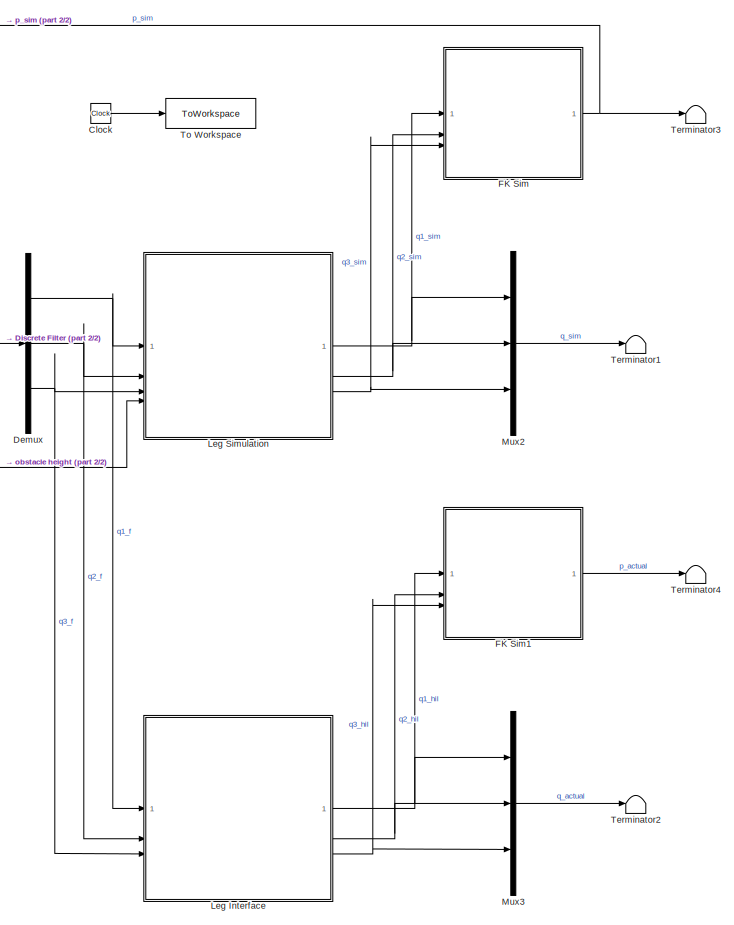
[diagram: root canvas - part 1/2, right side, full height]
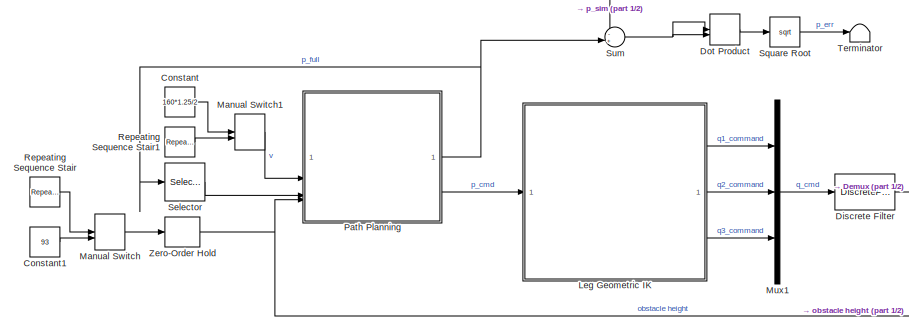
[diagram: root canvas - part 2/2, middle left region]
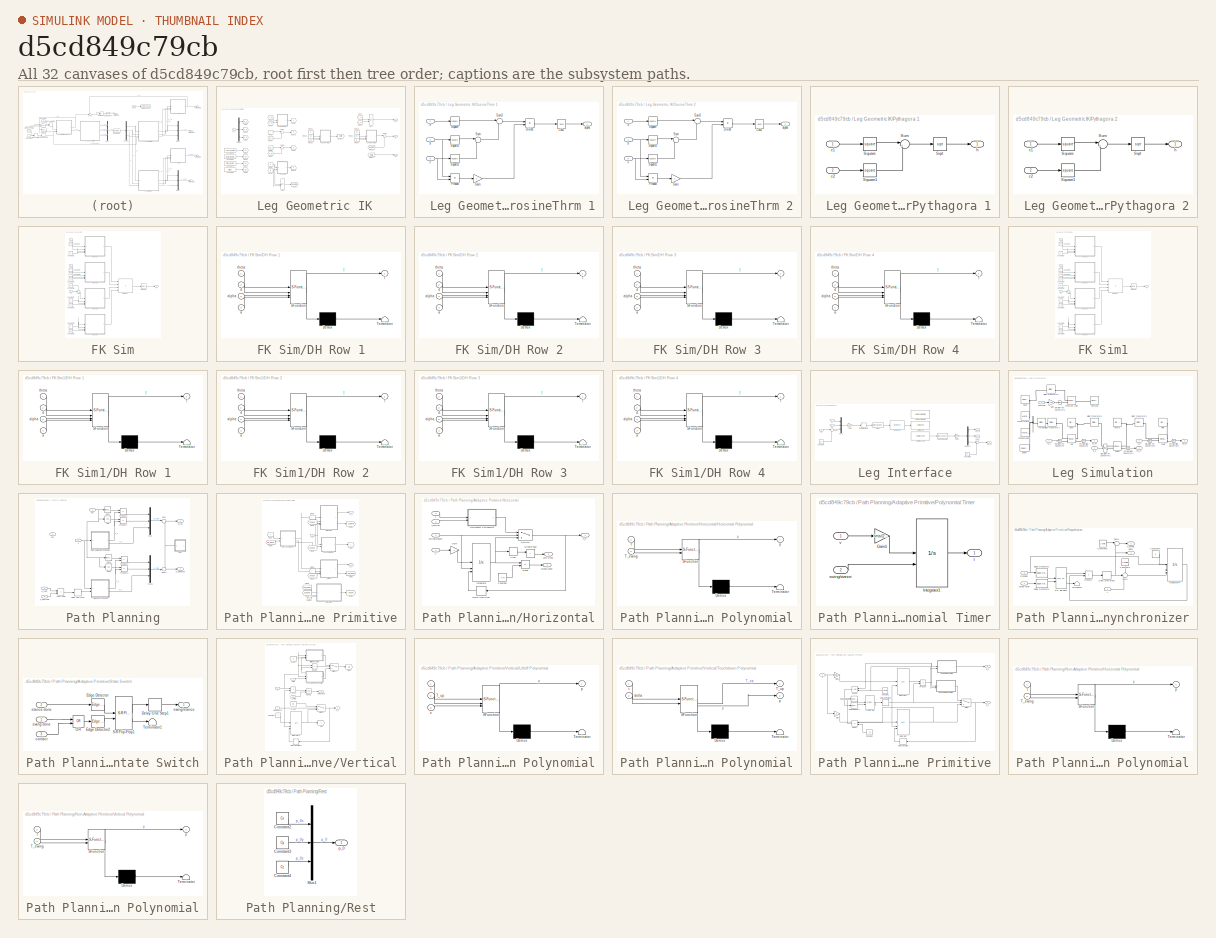
[diagram: thumbnail index - all 32 canvases of the model, root first then tree order]
MODEL slx_d5cd849c79cb
KIND model
CONFIG AbsTol = auto
CONFIG EnableMultiTasking = off
CONFIG FixedStep = auto
CONFIG MaxStep = auto
CONFIG MinStep = auto
CONFIG RelTol = 1e-3
CONFIG SampleTimeConstraint = Unconstrained
CONFIG SolverName = ode23t
CONFIG StartTime = 0.0
CONFIG StopTime = 10
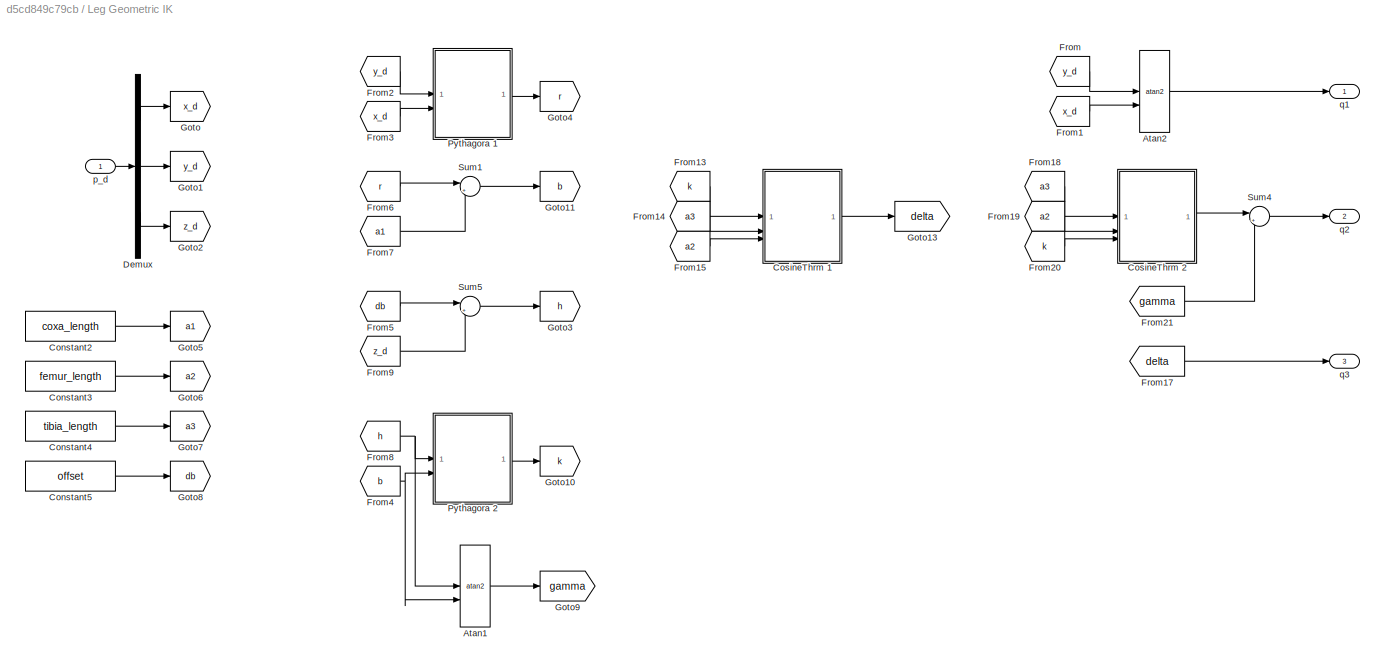
BLOCK [SubSystem]  Leg Geometric IK
BLOCK [Trigonometry]  Leg Geometric IK/Atan1
  Operator = atan2
BLOCK [Trigonometry]  Leg Geometric IK/Atan2
  Operator = atan2
BLOCK [Constant]  Leg Geometric IK/Constant2
  Value = coxa_length
BLOCK [Constant]  Leg Geometric IK/Constant3
  Value = femur_length
BLOCK [Constant]  Leg Geometric IK/Constant4
  Value = tibia_length
BLOCK [Constant]  Leg Geometric IK/Constant5
  Value = offset
BLOCK [SubSystem]  Leg Geometric IK/CosineThrm 1
BLOCK [Trigonometry]  Leg Geometric IK/CosineThrm 1/Cos1
  Operator = acos
BLOCK [Product]  Leg Geometric IK/CosineThrm 1/Divide
  Inputs = */
BLOCK [Gain]  Leg Geometric IK/CosineThrm 1/Gain
  Gain = 2
BLOCK [Product]  Leg Geometric IK/CosineThrm 1/Product
BLOCK [Math]  Leg Geometric IK/CosineThrm 1/Square
  Operator = square
BLOCK [Math]  Leg Geometric IK/CosineThrm 1/Square1
  Operator = square
BLOCK [Math]  Leg Geometric IK/CosineThrm 1/Square2
  Operator = square
BLOCK [Sum]  Leg Geometric IK/CosineThrm 1/Sum
  Inputs = |++
BLOCK [Sum]  Leg Geometric IK/CosineThrm 1/Sum3
  Inputs = |-+
BLOCK [Inport]  Leg Geometric IK/CosineThrm 1/a
  NameLocation = left
BLOCK [Outport]  Leg Geometric IK/CosineThrm 1/alpha
  NameLocation = right
BLOCK [Inport]  Leg Geometric IK/CosineThrm 1/b
  NameLocation = left
  Port = 2
BLOCK [Inport]  Leg Geometric IK/CosineThrm 1/c
  NameLocation = left
  Port = 3
BLOCK [SubSystem]  Leg Geometric IK/CosineThrm 2
BLOCK [Trigonometry]  Leg Geometric IK/CosineThrm 2/Cos1
  Operator = acos
BLOCK [Product]  Leg Geometric IK/CosineThrm 2/Divide
  Inputs = */
BLOCK [Gain]  Leg Geometric IK/CosineThrm 2/Gain
  Gain = 2
BLOCK [Product]  Leg Geometric IK/CosineThrm 2/Product
BLOCK [Math]  Leg Geometric IK/CosineThrm 2/Square
  Operator = square
BLOCK [Math]  Leg Geometric IK/CosineThrm 2/Square1
  Operator = square
BLOCK [Math]  Leg Geometric IK/CosineThrm 2/Square2
  Operator = square
BLOCK [Sum]  Leg Geometric IK/CosineThrm 2/Sum
  Inputs = |++
BLOCK [Sum]  Leg Geometric IK/CosineThrm 2/Sum3
  Inputs = |-+
BLOCK [Inport]  Leg Geometric IK/CosineThrm 2/a
  NameLocation = left
BLOCK [Outport]  Leg Geometric IK/CosineThrm 2/alpha
  NameLocation = right
BLOCK [Inport]  Leg Geometric IK/CosineThrm 2/b
  NameLocation = left
  Port = 2
BLOCK [Inport]  Leg Geometric IK/CosineThrm 2/c
  NameLocation = left
  Port = 3
BLOCK [Demux]  Leg Geometric IK/Demux
  Outputs = 3
BLOCK [From]  Leg Geometric IK/From
  GotoTag = y_d
BLOCK [From]  Leg Geometric IK/From1
  GotoTag = x_d
BLOCK [From]  Leg Geometric IK/From13
  GotoTag = k
BLOCK [From]  Leg Geometric IK/From14
  GotoTag = a3
BLOCK [From]  Leg Geometric IK/From15
  GotoTag = a2
BLOCK [From]  Leg Geometric IK/From17
  GotoTag = delta
BLOCK [From]  Leg Geometric IK/From18
  GotoTag = a3
BLOCK [From]  Leg Geometric IK/From19
  GotoTag = a2
BLOCK [From]  Leg Geometric IK/From2
  GotoTag = y_d
BLOCK [From]  Leg Geometric IK/From20
  GotoTag = k
BLOCK [From]  Leg Geometric IK/From21
  GotoTag = gamma
BLOCK [From]  Leg Geometric IK/From3
  GotoTag = x_d
BLOCK [From]  Leg Geometric IK/From4
  GotoTag = b
BLOCK [From]  Leg Geometric IK/From5
  GotoTag = db
BLOCK [From]  Leg Geometric IK/From6
  GotoTag = r
BLOCK [From]  Leg Geometric IK/From7
  GotoTag = a1
BLOCK [From]  Leg Geometric IK/From8
  GotoTag = h
BLOCK [From]  Leg Geometric IK/From9
  GotoTag = z_d
BLOCK [Goto]  Leg Geometric IK/Goto
  GotoTag = x_d
BLOCK [Goto]  Leg Geometric IK/Goto1
  GotoTag = y_d
BLOCK [Goto]  Leg Geometric IK/Goto10
  GotoTag = k
BLOCK [Goto]  Leg Geometric IK/Goto11
  GotoTag = b
BLOCK [Goto]  Leg Geometric IK/Goto13
  GotoTag = delta
BLOCK [Goto]  Leg Geometric IK/Goto2
  GotoTag = z_d
BLOCK [Goto]  Leg Geometric IK/Goto3
  GotoTag = h
BLOCK [Goto]  Leg Geometric IK/Goto4
  GotoTag = r
BLOCK [Goto]  Leg Geometric IK/Goto5
  GotoTag = a1
BLOCK [Goto]  Leg Geometric IK/Goto6
  GotoTag = a2
BLOCK [Goto]  Leg Geometric IK/Goto7
  GotoTag = a3
BLOCK [Goto]  Leg Geometric IK/Goto8
  GotoTag = db
BLOCK [Goto]  Leg Geometric IK/Goto9
  GotoTag = gamma
BLOCK [SubSystem]  Leg Geometric IK/Pythagora 1
BLOCK [Sqrt]  Leg Geometric IK/Pythagora 1/Sqrt
BLOCK [Math]  Leg Geometric IK/Pythagora 1/Square
  Operator = square
BLOCK [Math]  Leg Geometric IK/Pythagora 1/Square1
  Operator = square
BLOCK [Sum]  Leg Geometric IK/Pythagora 1/Sum
  Inputs = |++
BLOCK [Inport]  Leg Geometric IK/Pythagora 1/c1
  NameLocation = left
BLOCK [Inport]  Leg Geometric IK/Pythagora 1/c2
  NameLocation = left
  Port = 2
BLOCK [Outport]  Leg Geometric IK/Pythagora 1/h
  NameLocation = right
BLOCK [SubSystem]  Leg Geometric IK/Pythagora 2
BLOCK [Sqrt]  Leg Geometric IK/Pythagora 2/Sqrt
BLOCK [Math]  Leg Geometric IK/Pythagora 2/Square
  Operator = square
BLOCK [Math]  Leg Geometric IK/Pythagora 2/Square1
  Operator = square
BLOCK [Sum]  Leg Geometric IK/Pythagora 2/Sum
  Inputs = |++
BLOCK [Inport]  Leg Geometric IK/Pythagora 2/c1
  NameLocation = left
BLOCK [Inport]  Leg Geometric IK/Pythagora 2/c2
  NameLocation = left
  Port = 2
BLOCK [Outport]  Leg Geometric IK/Pythagora 2/h
  NameLocation = right
BLOCK [Sum]  Leg Geometric IK/Sum1
  Inputs = |+-
BLOCK [Sum]  Leg Geometric IK/Sum4
  Inputs = |+-
BLOCK [Sum]  Leg Geometric IK/Sum5
  Inputs = |+-
BLOCK [Inport]  Leg Geometric IK/p_d
  NameLocation = left
BLOCK [Outport]  Leg Geometric IK/q1
  NameLocation = right
BLOCK [Outport]  Leg Geometric IK/q2
  NameLocation = right
  Port = 2
BLOCK [Outport]  Leg Geometric IK/q3
  NameLocation = right
  Port = 3
BLOCK [Clock] Clock
  Decimation = 1
BLOCK [Constant] Constant
  Value = 160*1.25/2
BLOCK [Constant] Constant1
  Value = 93
BLOCK [Demux] Demux
  Outputs = 3
BLOCK [DiscreteFilter] Discrete Filter
  Commented = through
  Denominator = [1 -(1-alpha)]
  InputPortMap = u0
  Numerator = [alpha]
  SampleTime = Ts
BLOCK [DotProduct] Dot Product
  OutDataTypeStr = Inherit: Inherit via internal rule
BLOCK [SubSystem] FK Sim
BLOCK [Constant] FK Sim/Constant
  Value = 178
BLOCK [Constant] FK Sim/Constant1
  Value = 0
BLOCK [Constant] FK Sim/Constant2
  Value = 40
BLOCK [Constant] FK Sim/Constant3
  Value = pi/2
BLOCK [Constant] FK Sim/Constant4
  Value = 0
BLOCK [Constant] FK Sim/Constant5
  Value = 78
BLOCK [Constant] FK Sim/Constant6
  Value = 132
BLOCK [Constant] FK Sim/Constant7
  Value = 0
BLOCK [Constant] FK Sim/Constant8
  Value = 0
BLOCK [Constant] FK Sim/Constant9
  Value = pi
BLOCK [SubSystem] FK Sim/DH Row 1
  ErrorFcn = Stateflow.Translate.translate
  PermitHierarchicalResolution = ExplicitOnly
  SFBlockType = MATLAB Function
  TreatAsAtomicUnit = on
BLOCK [Demux] FK Sim/DH Row 1/ Demux 
  Outputs = 1
BLOCK [S-Function] FK Sim/DH Row 1/ SFunction 
  EnableBusSupport = on
  FunctionName = sf_sfun
  PortCounts = [4 2]
  SFcnIsStateOwnerBlock = off
  SFunctionDeploymentMode = off
  Tag = Stateflow S-Function 2
BLOCK [Terminator] FK Sim/DH Row 1/ Terminator 
BLOCK [Outport] FK Sim/DH Row 1/T
BLOCK [Inport] FK Sim/DH Row 1/a
  Port = 4
BLOCK [Inport] FK Sim/DH Row 1/alpha
  Port = 3
BLOCK [Inport] FK Sim/DH Row 1/d
  Port = 2
BLOCK [Inport] FK Sim/DH Row 1/theta
BLOCK [SubSystem] FK Sim/DH Row 2
  ErrorFcn = Stateflow.Translate.translate
  PermitHierarchicalResolution = ExplicitOnly
  SFBlockType = MATLAB Function
  TreatAsAtomicUnit = on
BLOCK [Demux] FK Sim/DH Row 2/ Demux 
  Outputs = 1
BLOCK [S-Function] FK Sim/DH Row 2/ SFunction 
  EnableBusSupport = on
  FunctionName = sf_sfun
  PortCounts = [4 2]
  SFcnIsStateOwnerBlock = off
  SFunctionDeploymentMode = off
  Tag = Stateflow S-Function 1
BLOCK [Terminator] FK Sim/DH Row 2/ Terminator 
BLOCK [Outport] FK Sim/DH Row 2/T
BLOCK [Inport] FK Sim/DH Row 2/a
  Port = 4
BLOCK [Inport] FK Sim/DH Row 2/alpha
  Port = 3
BLOCK [Inport] FK Sim/DH Row 2/d
  Port = 2
BLOCK [Inport] FK Sim/DH Row 2/theta
BLOCK [SubSystem] FK Sim/DH Row 3
  ErrorFcn = Stateflow.Translate.translate
  PermitHierarchicalResolution = ExplicitOnly
  SFBlockType = MATLAB Function
  TreatAsAtomicUnit = on
BLOCK [Demux] FK Sim/DH Row 3/ Demux 
  Outputs = 1
BLOCK [S-Function] FK Sim/DH Row 3/ SFunction 
  EnableBusSupport = on
  FunctionName = sf_sfun
  PortCounts = [4 2]
  SFcnIsStateOwnerBlock = off
  SFunctionDeploymentMode = off
  Tag = Stateflow S-Function 3
BLOCK [Terminator] FK Sim/DH Row 3/ Terminator 
BLOCK [Outport] FK Sim/DH Row 3/T
BLOCK [Inport] FK Sim/DH Row 3/a
  Port = 4
BLOCK [Inport] FK Sim/DH Row 3/alpha
  Port = 3
BLOCK [Inport] FK Sim/DH Row 3/d
  Port = 2
BLOCK [Inport] FK Sim/DH Row 3/theta
BLOCK [SubSystem] FK Sim/DH Row 4
  ErrorFcn = Stateflow.Translate.translate
  PermitHierarchicalResolution = ExplicitOnly
  SFBlockType = MATLAB Function
  TreatAsAtomicUnit = on
BLOCK [Demux] FK Sim/DH Row 4/ Demux 
  Outputs = 1
BLOCK [S-Function] FK Sim/DH Row 4/ SFunction 
  EnableBusSupport = on
  FunctionName = sf_sfun
  PortCounts = [4 2]
  SFcnIsStateOwnerBlock = off
  SFunctionDeploymentMode = off
  Tag = Stateflow S-Function 4
BLOCK [Terminator] FK Sim/DH Row 4/ Terminator 
BLOCK [Outport] FK Sim/DH Row 4/T
BLOCK [Inport] FK Sim/DH Row 4/a
  Port = 4
BLOCK [Inport] FK Sim/DH Row 4/alpha
  Port = 3
BLOCK [Inport] FK Sim/DH Row 4/d
  Port = 2
BLOCK [Inport] FK Sim/DH Row 4/theta
BLOCK [Product] FK Sim/Product
  Inputs = 4
  Multiplication = Matrix(*)
BLOCK [Selector] FK Sim/Selector
  IndexOptions = Index vector (dialog),Index vector (dialog)
  Indices = [1 2 3],4
  InputPortWidth = 3
  NumberOfDimensions = 2
  OutputSizes = 1,1
BLOCK [Sum] FK Sim/Sum
  Inputs = -+|
BLOCK [Outport] FK Sim/p
  NameLocation = right
BLOCK [Inport] FK Sim/q1
  NameLocation = left
BLOCK [Inport] FK Sim/q2
  NameLocation = left
  Port = 2
BLOCK [Inport] FK Sim/q3
  NameLocation = left
  Port = 3
BLOCK [SubSystem] FK Sim1
  Commented = on
BLOCK [Constant] FK Sim1/Constant
  Value = 178
BLOCK [Constant] FK Sim1/Constant1
  Value = 0
BLOCK [Constant] FK Sim1/Constant2
  Value = 40
BLOCK [Constant] FK Sim1/Constant3
  Value = pi/2
BLOCK [Constant] FK Sim1/Constant4
  Value = 0
BLOCK [Constant] FK Sim1/Constant5
  Value = 78
BLOCK [Constant] FK Sim1/Constant6
  Value = 132
BLOCK [Constant] FK Sim1/Constant7
  Value = 0
BLOCK [Constant] FK Sim1/Constant8
  Value = 0
BLOCK [Constant] FK Sim1/Constant9
  Value = pi
BLOCK [SubSystem] FK Sim1/DH Row 1
  ErrorFcn = Stateflow.Translate.translate
  PermitHierarchicalResolution = ExplicitOnly
  SFBlockType = MATLAB Function
  TreatAsAtomicUnit = on
BLOCK [Demux] FK Sim1/DH Row 1/ Demux 
  Outputs = 1
BLOCK [S-Function] FK Sim1/DH Row 1/ SFunction 
  EnableBusSupport = on
  FunctionName = sf_sfun
  PortCounts = [4 2]
  SFcnIsStateOwnerBlock = off
  SFunctionDeploymentMode = off
  Tag = Stateflow S-Function 5
BLOCK [Terminator] FK Sim1/DH Row 1/ Terminator 
BLOCK [Outport] FK Sim1/DH Row 1/T
BLOCK [Inport] FK Sim1/DH Row 1/a
  Port = 4
BLOCK [Inport] FK Sim1/DH Row 1/alpha
  Port = 3
BLOCK [Inport] FK Sim1/DH Row 1/d
  Port = 2
BLOCK [Inport] FK Sim1/DH Row 1/theta
BLOCK [SubSystem] FK Sim1/DH Row 2
  ErrorFcn = Stateflow.Translate.translate
  PermitHierarchicalResolution = ExplicitOnly
  SFBlockType = MATLAB Function
  TreatAsAtomicUnit = on
BLOCK [Demux] FK Sim1/DH Row 2/ Demux 
  Outputs = 1
BLOCK [S-Function] FK Sim1/DH Row 2/ SFunction 
  EnableBusSupport = on
  FunctionName = sf_sfun
  PortCounts = [4 2]
  SFcnIsStateOwnerBlock = off
  SFunctionDeploymentMode = off
  Tag = Stateflow S-Function 6
BLOCK [Terminator] FK Sim1/DH Row 2/ Terminator 
BLOCK [Outport] FK Sim1/DH Row 2/T
BLOCK [Inport] FK Sim1/DH Row 2/a
  Port = 4
BLOCK [Inport] FK Sim1/DH Row 2/alpha
  Port = 3
BLOCK [Inport] FK Sim1/DH Row 2/d
  Port = 2
BLOCK [Inport] FK Sim1/DH Row 2/theta
BLOCK [SubSystem] FK Sim1/DH Row 3
  ErrorFcn = Stateflow.Translate.translate
  PermitHierarchicalResolution = ExplicitOnly
  SFBlockType = MATLAB Function
  TreatAsAtomicUnit = on
BLOCK [Demux] FK Sim1/DH Row 3/ Demux 
  Outputs = 1
BLOCK [S-Function] FK Sim1/DH Row 3/ SFunction 
  EnableBusSupport = on
  FunctionName = sf_sfun
  PortCounts = [4 2]
  SFcnIsStateOwnerBlock = off
  SFunctionDeploymentMode = off
  Tag = Stateflow S-Function 7
BLOCK [Terminator] FK Sim1/DH Row 3/ Terminator 
BLOCK [Outport] FK Sim1/DH Row 3/T
BLOCK [Inport] FK Sim1/DH Row 3/a
  Port = 4
BLOCK [Inport] FK Sim1/DH Row 3/alpha
  Port = 3
BLOCK [Inport] FK Sim1/DH Row 3/d
  Port = 2
BLOCK [Inport] FK Sim1/DH Row 3/theta
BLOCK [SubSystem] FK Sim1/DH Row 4
  ErrorFcn = Stateflow.Translate.translate
  PermitHierarchicalResolution = ExplicitOnly
  SFBlockType = MATLAB Function
  TreatAsAtomicUnit = on
BLOCK [Demux] FK Sim1/DH Row 4/ Demux 
  Outputs = 1
BLOCK [S-Function] FK Sim1/DH Row 4/ SFunction 
  EnableBusSupport = on
  FunctionName = sf_sfun
  PortCounts = [4 2]
  SFcnIsStateOwnerBlock = off
  SFunctionDeploymentMode = off
  Tag = Stateflow S-Function 8
BLOCK [Terminator] FK Sim1/DH Row 4/ Terminator 
BLOCK [Outport] FK Sim1/DH Row 4/T
BLOCK [Inport] FK Sim1/DH Row 4/a
  Port = 4
BLOCK [Inport] FK Sim1/DH Row 4/alpha
  Port = 3
BLOCK [Inport] FK Sim1/DH Row 4/d
  Port = 2
BLOCK [Inport] FK Sim1/DH Row 4/theta
BLOCK [Product] FK Sim1/Product
  Inputs = 4
  Multiplication = Matrix(*)
BLOCK [Selector] FK Sim1/Selector
  IndexOptions = Index vector (dialog),Index vector (dialog)
  Indices = [1 2 3],4
  InputPortWidth = 3
  NumberOfDimensions = 2
  OutputSizes = 1,1
BLOCK [Sum] FK Sim1/Sum
  Inputs = -+|
BLOCK [Outport] FK Sim1/p
  NameLocation = right
BLOCK [Inport] FK Sim1/q1
  NameLocation = left
BLOCK [Inport] FK Sim1/q2
  NameLocation = left
  Port = 2
BLOCK [Inport] FK Sim1/q3
  NameLocation = left
  Port = 3
BLOCK [SubSystem] Leg Interface
  Commented = on
BLOCK [Reference] Leg Interface/Byte Pack  REF=svdutilitieslib/Byte Pack
  SourceBlock = svdutilitieslib/Byte Pack
  SourceType = Byte pack
BLOCK [DataTypeConversion] Leg Interface/Cast
  OutDataTypeStr = int32
  RndMeth = Floor
  SaturateOnIntegerOverflow = off
BLOCK [DataTypeConversion] Leg Interface/Cast To Double
  OutDataTypeStr = double
  RndMeth = Floor
  SaturateOnIntegerOverflow = off
BLOCK [Constant] Leg Interface/Constant
  Value = pi
BLOCK [Constant] Leg Interface/Constant1
  Value = pi
BLOCK [Demux] Leg Interface/Demux1
  Outputs = 3
BLOCK [Gain] Leg Interface/Gain
  Gain = 2048/pi
BLOCK [Gain] Leg Interface/Gain1
  Gain = pi/2048
BLOCK [Mux] Leg Interface/Mux1
  DisplayOption = bar
  Inputs = 3
BLOCK [Reference] Leg Interface/Serial Configuration  REF=instrumentseriallib/Serial Configuration
  LibrarySourceBlock = instrumentlib/Serial Configuration
  Priority = -200000
  SourceBlock = instrumentseriallib/Serial Configuration
  SourceType = system.SerialConfiguration
BLOCK [Reference] Leg Interface/Serial Receive  REF=instrumentseriallib/Serial Receive
  LibrarySourceBlock = instrumentlib/Serial Receive
  Priority = 1
  SourceBlock = instrumentseriallib/Serial Receive
  SourceType = system.SerialReceive
BLOCK [Reference] Leg Interface/Serial Send  REF=instrumentseriallib/Serial Send
  LibrarySourceBlock = instrumentlib/Serial Send
  Priority = 1
  SourceBlock = instrumentseriallib/Serial Send
  SourceType = system.SerialSend
BLOCK [Sum] Leg Interface/Sum
  Inputs = |-+
BLOCK [Sum] Leg Interface/Sum1
  Inputs = |-+
BLOCK [ZeroOrderHold] Leg Interface/Zero-Order Hold
  SampleTime = 1e-2
BLOCK [Inport] Leg Interface/q1
  NameLocation = left
BLOCK [Outport] Leg Interface/q1_m
  NameLocation = right
BLOCK [Inport] Leg Interface/q2
  NameLocation = left
  Port = 2
BLOCK [Outport] Leg Interface/q2_m
  NameLocation = right
  Port = 2
BLOCK [Inport] Leg Interface/q3
  NameLocation = left
  Port = 3
BLOCK [Outport] Leg Interface/q3_m
  NameLocation = right
  Port = 3
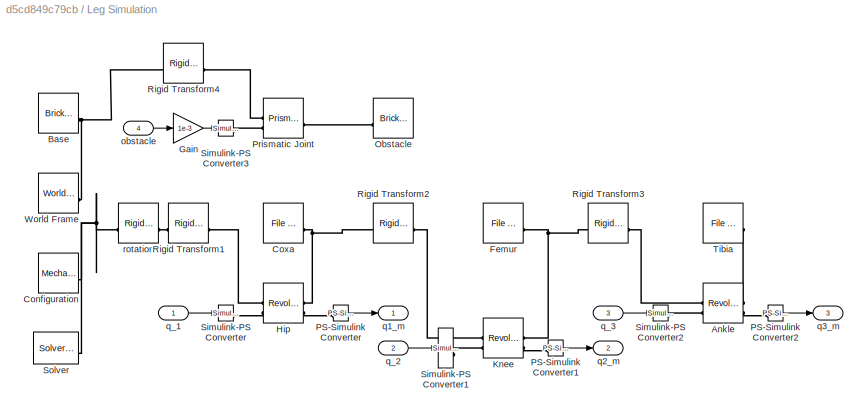
BLOCK [SubSystem] Leg Simulation
BLOCK [Reference] Leg Simulation/Ankle  REF=sm_lib/Joints/Revolute Joint
  SourceBlock = sm_lib/Joints/Revolute Joint
  SourceType = Revolute Joint
BLOCK [Reference] Leg Simulation/Base  REF=sm_lib/Body Elements/Brick Solid
  NameLocation = top
  SourceBlock = sm_lib/Body Elements/Brick Solid
  SourceType = Brick Solid
BLOCK [Reference] Leg Simulation/Configuration  REF=sm_lib/Utilities/Mechanism
Configuration
  NameLocation = top
  SourceBlock = sm_lib/Utilities/Mechanism\nConfiguration
  SourceType = Mechanism\nConfiguration
BLOCK [Reference] Leg Simulation/Coxa  REF=sm_lib/Body Elements/File Solid
  NameLocation = top
  SourceBlock = sm_lib/Body Elements/File Solid
  SourceType = File Solid
BLOCK [Reference] Leg Simulation/Femur  REF=sm_lib/Body Elements/File Solid
  NameLocation = top
  SourceBlock = sm_lib/Body Elements/File Solid
  SourceType = File Solid
BLOCK [Gain] Leg Simulation/Gain
  Gain = 1e-3
BLOCK [Reference] Leg Simulation/Hip  REF=sm_lib/Joints/Revolute Joint
  SourceBlock = sm_lib/Joints/Revolute Joint
  SourceType = Revolute Joint
BLOCK [Reference] Leg Simulation/Knee  REF=sm_lib/Joints/Revolute Joint
  SourceBlock = sm_lib/Joints/Revolute Joint
  SourceType = Revolute Joint
BLOCK [Reference] Leg Simulation/Obstacle  REF=sm_lib/Body Elements/Brick Solid
  NameLocation = top
  SourceBlock = sm_lib/Body Elements/Brick Solid
  SourceType = Brick Solid
BLOCK [Reference] Leg Simulation/PS-Simulink Converter  REF=nesl_utility/PS-Simulink
Converter
  SourceBlock = nesl_utility/PS-Simulink\nConverter
  SourceType = PS-Simulink\nConverter
BLOCK [Reference] Leg Simulation/PS-Simulink Converter1  REF=nesl_utility/PS-Simulink
Converter
  SourceBlock = nesl_utility/PS-Simulink\nConverter
  SourceType = PS-Simulink\nConverter
BLOCK [Reference] Leg Simulation/PS-Simulink Converter2  REF=nesl_utility/PS-Simulink
Converter
  SourceBlock = nesl_utility/PS-Simulink\nConverter
  SourceType = PS-Simulink\nConverter
BLOCK [Reference] Leg Simulation/Prismatic Joint  REF=sm_lib/Joints/Prismatic
Joint
  SourceBlock = sm_lib/Joints/Prismatic\nJoint
  SourceType = Prismatic\nJoint
BLOCK [Reference] Leg Simulation/Rigid Transform1  REF=sm_lib/Frames and
Transforms/Rigid
Transform
  SourceBlock = sm_lib/Frames and\nTransforms/Rigid\nTransform
  SourceType = Rigid\nTransform
BLOCK [Reference] Leg Simulation/Rigid Transform2  REF=sm_lib/Frames and
Transforms/Rigid
Transform
  SourceBlock = sm_lib/Frames and\nTransforms/Rigid\nTransform
  SourceType = Rigid\nTransform
BLOCK [Reference] Leg Simulation/Rigid Transform3  REF=sm_lib/Frames and
Transforms/Rigid
Transform
  SourceBlock = sm_lib/Frames and\nTransforms/Rigid\nTransform
  SourceType = Rigid\nTransform
BLOCK [Reference] Leg Simulation/Rigid Transform4  REF=sm_lib/Frames and
Transforms/Rigid
Transform
  SourceBlock = sm_lib/Frames and\nTransforms/Rigid\nTransform
  SourceType = Rigid\nTransform
BLOCK [Reference] Leg Simulation/Simulink-PS Converter  REF=nesl_utility/Simulink-PS
Converter
  SourceBlock = nesl_utility/Simulink-PS\nConverter
  SourceType = Simulink-PS\nConverter
BLOCK [Reference] Leg Simulation/Simulink-PS Converter1  REF=nesl_utility/Simulink-PS
Converter
  SourceBlock = nesl_utility/Simulink-PS\nConverter
  SourceType = Simulink-PS\nConverter
BLOCK [Reference] Leg Simulation/Simulink-PS Converter2  REF=nesl_utility/Simulink-PS
Converter
  SourceBlock = nesl_utility/Simulink-PS\nConverter
  SourceType = Simulink-PS\nConverter
BLOCK [Reference] Leg Simulation/Simulink-PS Converter3  REF=nesl_utility/Simulink-PS
Converter
  SourceBlock = nesl_utility/Simulink-PS\nConverter
  SourceType = Simulink-PS\nConverter
BLOCK [Reference] Leg Simulation/Solver  REF=nesl_utility/Solver
Configuration
  NameLocation = top
  SourceBlock = nesl_utility/Solver\nConfiguration
  SourceType = Solver\nConfiguration
BLOCK [Reference] Leg Simulation/Tibia  REF=sm_lib/Body Elements/File Solid
  NameLocation = top
  SourceBlock = sm_lib/Body Elements/File Solid
  SourceType = File Solid
BLOCK [Reference] Leg Simulation/World Frame  REF=sm_lib/Frames and
Transforms/World Frame
  NameLocation = top
  SourceBlock = sm_lib/Frames and\nTransforms/World Frame
  SourceType = World Frame
BLOCK [Inport] Leg Simulation/obstacle
  Port = 4
BLOCK [Outport] Leg Simulation/q1_m
  NameLocation = top
BLOCK [Outport] Leg Simulation/q2_m
  Port = 2
BLOCK [Outport] Leg Simulation/q3_m
  Port = 3
BLOCK [Inport] Leg Simulation/q_1
BLOCK [Inport] Leg Simulation/q_2
  Port = 2
BLOCK [Inport] Leg Simulation/q_3
  NameLocation = top
  Port = 3
BLOCK [Reference] Leg Simulation/rotation  REF=sm_lib/Frames and
Transforms/Rigid
Transform
  SourceBlock = sm_lib/Frames and\nTransforms/Rigid\nTransform
  SourceType = Rigid\nTransform
BLOCK [ManualSwitch] Manual Switch
BLOCK [ManualSwitch] Manual Switch1
BLOCK [Mux] Mux1
  DisplayOption = bar
  Inputs = 3
BLOCK [Mux] Mux2
  DisplayOption = bar
  Inputs = 3
BLOCK [Mux] Mux3
  Commented = on
  DisplayOption = bar
  Inputs = 3
BLOCK [SubSystem] Path Planning
BLOCK [SubSystem] Path Planning/Adaptive Primitive
  TreatAsAtomicUnit = on
BLOCK [From] Path Planning/Adaptive Primitive/From
  GotoTag = t
BLOCK [From] Path Planning/Adaptive Primitive/From1
  GotoTag = t
BLOCK [From] Path Planning/Adaptive Primitive/From2
  GotoTag = t
BLOCK [From] Path Planning/Adaptive Primitive/From3
  GotoTag = st_done
BLOCK [From] Path Planning/Adaptive Primitive/From4
  GotoTag = sw_done
BLOCK [From] Path Planning/Adaptive Primitive/From5
  GotoTag = sw_done
BLOCK [From] Path Planning/Adaptive Primitive/From6
  GotoTag = phase
BLOCK [From] Path Planning/Adaptive Primitive/From7
  GotoTag = phase
BLOCK [From] Path Planning/Adaptive Primitive/From8
  GotoTag = phase
BLOCK [Goto] Path Planning/Adaptive Primitive/Goto
  GotoTag = t
BLOCK [Goto] Path Planning/Adaptive Primitive/Goto1
  GotoTag = st_done
BLOCK [Goto] Path Planning/Adaptive Primitive/Goto2
  GotoTag = sw_done
BLOCK [Goto] Path Planning/Adaptive Primitive/Goto3
  GotoTag = phase
BLOCK [SubSystem] Path Planning/Adaptive Primitive/Horizontal
  NameLocation = top
  PortSchema = {"entries":[{"content":{"sides":[{"content":{"connectorIds":["Out3","In1","In2","In3","In4"]},"type":"ConnectorPlacement.EquallySpacedRectSide","uuid":"130993a3-9dd7-498f-9637-003458af1e12"},{"content":{"connectorIds":["Out1","Out2"],"side":"RIGHT"},"type":"ConnectorPlacement.EquallySpacedRectSide","uuid":"2f31e0ef-3848-4b5d-858d-873934ce2c21"},{"content":{"connectorIds":[],"side":"TOP"},"type":"C...<+272ch>
BLOCK [Constant] Path Planning/Adaptive Primitive/Horizontal/Constant
  Value = -r_o
BLOCK [Delay] Path Planning/Adaptive Primitive/Horizontal/Delay One Step
  DelayLength = 1
  InputPortMap = u0
  NameLocation = top
  SampleTime = 1e-4
BLOCK [RelationalOperator] Path Planning/Adaptive Primitive/Horizontal/Equal
  InputSameDT = off
  Operator = <=
  OutDataTypeStr = boolean
  RndMeth = Simplest
BLOCK [Gain] Path Planning/Adaptive Primitive/Horizontal/Gain
  Gain = -1
BLOCK [RelationalOperator] Path Planning/Adaptive Primitive/Horizontal/GreaterThan
  InputSameDT = off
  Operator = >
  OutDataTypeStr = boolean
  RndMeth = Simplest
BLOCK [SubSystem] Path Planning/Adaptive Primitive/Horizontal/Horizontal Polynomial
  ErrorFcn = Stateflow.Translate.translate
  NameLocation = top
  PermitHierarchicalResolution = ExplicitOnly
  SFBlockType = MATLAB Function
  TreatAsAtomicUnit = on
BLOCK [Demux] Path Planning/Adaptive Primitive/Horizontal/Horizontal Polynomial/ Demux 
  Outputs = 1
BLOCK [S-Function] Path Planning/Adaptive Primitive/Horizontal/Horizontal Polynomial/ SFunction 
  EnableBusSupport = on
  FunctionName = sf_sfun
  Parameters = beta,r_o
  PortCounts = [2 2]
  SFcnIsStateOwnerBlock = off
  SFunctionDeploymentMode = off
  Tag = Stateflow S-Function 9
BLOCK [Terminator] Path Planning/Adaptive Primitive/Horizontal/Horizontal Polynomial/ Terminator 
BLOCK [Inport] Path Planning/Adaptive Primitive/Horizontal/Horizontal Polynomial/T_swing
  Port = 2
BLOCK [Outport] Path Planning/Adaptive Primitive/Horizontal/Horizontal Polynomial/p
BLOCK [Inport] Path Planning/Adaptive Primitive/Horizontal/Horizontal Polynomial/t
BLOCK [Integrator] Path Planning/Adaptive Primitive/Horizontal/Integrator
  ExternalReset = falling
  InitialConditionSource = external
BLOCK [Signum] Path Planning/Adaptive Primitive/Horizontal/Sign
BLOCK [Switch] Path Planning/Adaptive Primitive/Horizontal/Switch
  Criteria = u2 > Threshold
  InputSameDT = off
  SaturateOnIntegerOverflow = off
BLOCK [Inport] Path Planning/Adaptive Primitive/Horizontal/T_swing
  NameLocation = left
BLOCK [Outport] Path Planning/Adaptive Primitive/Horizontal/p_h
  NameLocation = right
BLOCK [Outport] Path Planning/Adaptive Primitive/Horizontal/stance done
  NameLocation = right
  Port = 2
BLOCK [Inport] Path Planning/Adaptive Primitive/Horizontal/swing//stance
  NameLocation = left
  Port = 3
BLOCK [Inport] Path Planning/Adaptive Primitive/Horizontal/t
  NameLocation = left
  Port = 2
BLOCK [Inport] Path Planning/Adaptive Primitive/Horizontal/v
  NameLocation = left
  Port = 4
BLOCK [Outport] Path Planning/Adaptive Primitive/Horizontal/zero cross
  NameLocation = right
  Port = 3
BLOCK [SubSystem] Path Planning/Adaptive Primitive/Polynomial Timer
  NameLocation = top
BLOCK [Gain] Path Planning/Adaptive Primitive/Polynomial Timer/Gain1
  Gain = beta/(2*r_o)
BLOCK [Integrator] Path Planning/Adaptive Primitive/Polynomial Timer/Integrator1
  ExternalReset = rising
BLOCK [Inport] Path Planning/Adaptive Primitive/Polynomial Timer/swing//stance
  NameLocation = left
  Port = 2
BLOCK [Outport] Path Planning/Adaptive Primitive/Polynomial Timer/t
  NameLocation = right
BLOCK [Inport] Path Planning/Adaptive Primitive/Polynomial Timer/v
  NameLocation = left
BLOCK [SubSystem] Path Planning/Adaptive Primitive/Resynchronizer
  NameLocation = top
  PortSchema = {"entries":[{"content":{"sides":[{"content":{"connectorIds":["In1","In2"]},"type":"ConnectorPlacement.EquallySpacedRectSide","uuid":"62c16c4d-254c-4f19-ac82-c5564fd87460"},{"content":{"connectorIds":["In3","Out1","Out2"],"side":"RIGHT"},"type":"ConnectorPlacement.EquallySpacedRectSide","uuid":"75ae3a29-aa01-4e70-aab2-f18b5b67135b"},{"content":{"connectorIds":[],"side":"TOP"},"type":"ConnectorPlace...<+403ch>
BLOCK [Constant] Path Planning/Adaptive Primitive/Resynchronizer/Constant4
  NameLocation = left
  Value = 1-beta/2
BLOCK [Constant] Path Planning/Adaptive Primitive/Resynchronizer/Constant5
  Value = 0
BLOCK [Constant] Path Planning/Adaptive Primitive/Resynchronizer/Constant6
  Value = 1-beta
BLOCK [Delay] Path Planning/Adaptive Primitive/Resynchronizer/Delay One Step2
  DelayLength = 1
  InputPortMap = u0
  SampleTime = 1e-4
BLOCK [Reference] Path Planning/Adaptive Primitive/Resynchronizer/Edge Detector2  REF=spsEdgeDetectorLib/Edge Detector
  LibrarySourceBlock = sps_lib/Control/Edge Detector
  SourceBlock = spsEdgeDetectorLib/Edge Detector
  SourceType = Edge Detector
BLOCK [Reference] Path Planning/Adaptive Primitive/Resynchronizer/Edge Detector3  REF=spsEdgeDetectorLib/Edge Detector
  LibrarySourceBlock = sps_lib/Control/Edge Detector
  SourceBlock = spsEdgeDetectorLib/Edge Detector
  SourceType = Edge Detector
BLOCK [Integrator] Path Planning/Adaptive Primitive/Resynchronizer/Integrator4
  ExternalReset = falling
  InitialConditionSource = external
BLOCK [Product] Path Planning/Adaptive Primitive/Resynchronizer/Product2
BLOCK [Reference] Path Planning/Adaptive Primitive/Resynchronizer/S-R Flip-Flop2  REF=simulink_extras/Flip Flops/S-R
Flip-Flop
  SourceBlock = simulink_extras/Flip Flops/S-R\nFlip-Flop
  SourceType = SRFlipFlop
BLOCK [Sum] Path Planning/Adaptive Primitive/Resynchronizer/Sum3
  Inputs = ++-
BLOCK [Sum] Path Planning/Adaptive Primitive/Resynchronizer/Sum4
  Inputs = |++
BLOCK [Outport] Path Planning/Adaptive Primitive/Resynchronizer/T_swing
  NameLocation = right
BLOCK [Terminator] Path Planning/Adaptive Primitive/Resynchronizer/Terminator
BLOCK [Inport] Path Planning/Adaptive Primitive/Resynchronizer/crossing
  NameLocation = left
  Port = 3
BLOCK [Outport] Path Planning/Adaptive Primitive/Resynchronizer/delta
  NameLocation = right
  Port = 2
BLOCK [Inport] Path Planning/Adaptive Primitive/Resynchronizer/swing reset
  NameLocation = left
  Port = 2
BLOCK [Inport] Path Planning/Adaptive Primitive/Resynchronizer/t
  NameLocation = left
BLOCK [SubSystem] Path Planning/Adaptive Primitive/State Switch
  NameLocation = top
  PortSchema = {"entries":[{"content":{"sides":[{"content":{"connectorIds":["Out1"]},"type":"ConnectorPlacement.EquallySpacedRectSide","uuid":"6334b3b7-75d3-4d81-afc4-23195bb8d279"},{"content":{"connectorIds":["In1","In2","In3"],"side":"RIGHT"},"type":"ConnectorPlacement.EquallySpacedRectSide","uuid":"708193af-67b3-42bc-9844-21b807bd9e01"},{"content":{"connectorIds":[],"side":"TOP"},"type":"ConnectorPlacement.Eq...<+252ch>
BLOCK [Delay] Path Planning/Adaptive Primitive/State Switch/Delay One Step1
  DelayLength = 1
  InputPortMap = u0
  SampleTime = 1e-4
BLOCK [Reference] Path Planning/Adaptive Primitive/State Switch/Edge Detector  REF=spsEdgeDetectorLib/Edge Detector
  LibrarySourceBlock = sps_lib/Control/Edge Detector
  SourceBlock = spsEdgeDetectorLib/Edge Detector
  SourceType = Edge Detector
BLOCK [Reference] Path Planning/Adaptive Primitive/State Switch/Edge Detector2  REF=spsEdgeDetectorLib/Edge Detector
  LibrarySourceBlock = sps_lib/Control/Edge Detector
  SourceBlock = spsEdgeDetectorLib/Edge Detector
  SourceType = Edge Detector
BLOCK [Logic] Path Planning/Adaptive Primitive/State Switch/OR
  AllPortsSameDT = off
  IconShape = distinctive
  Operator = OR
  OutDataTypeStr = boolean
BLOCK [Reference] Path Planning/Adaptive Primitive/State Switch/S-R Flip-Flop1  REF=simulink_extras/Flip Flops/S-R
Flip-Flop
  SourceBlock = simulink_extras/Flip Flops/S-R\nFlip-Flop
  SourceType = SRFlipFlop
BLOCK [Terminator] Path Planning/Adaptive Primitive/State Switch/Terminator1
BLOCK [Inport] Path Planning/Adaptive Primitive/State Switch/contact
  NameLocation = left
  Port = 3
BLOCK [Inport] Path Planning/Adaptive Primitive/State Switch/stance done
  NameLocation = left
  Port = 2
BLOCK [Inport] Path Planning/Adaptive Primitive/State Switch/swing done
  NameLocation = left
BLOCK [Outport] Path Planning/Adaptive Primitive/State Switch/swing//stance
  NameLocation = right
BLOCK [SubSystem] Path Planning/Adaptive Primitive/Vertical
  NameLocation = top
BLOCK [Constant] Path Planning/Adaptive Primitive/Vertical/Constant
  Value = 0
BLOCK [Delay] Path Planning/Adaptive Primitive/Vertical/Delay One Step2
  DelayLength = 1
  InputPortMap = u0
  NameLocation = top
  SampleTime = 1e-4
BLOCK [RelationalOperator] Path Planning/Adaptive Primitive/Vertical/Equal1
  InputSameDT = off
  OutDataTypeStr = boolean
  RndMeth = Simplest
BLOCK [RelationalOperator] Path Planning/Adaptive Primitive/Vertical/Equal2
  InputSameDT = off
  Operator = <=
  OutDataTypeStr = boolean
  RndMeth = Simplest
BLOCK [From] Path Planning/Adaptive Primitive/Vertical/From
  GotoTag = z
BLOCK [From] Path Planning/Adaptive Primitive/Vertical/From1
  GotoTag = air
BLOCK [Goto] Path Planning/Adaptive Primitive/Vertical/Goto
  GotoTag = z
BLOCK [Goto] Path Planning/Adaptive Primitive/Vertical/Goto1
  GotoTag = air
BLOCK [Integrator] Path Planning/Adaptive Primitive/Vertical/Integrator2
  ExternalReset = falling
  InitialConditionSource = external
BLOCK [SubSystem] Path Planning/Adaptive Primitive/Vertical/Liftoff Polynomial
  ErrorFcn = Stateflow.Translate.translate
  NameLocation = top
  PermitHierarchicalResolution = ExplicitOnly
  SFBlockType = MATLAB Function
  TreatAsAtomicUnit = on
BLOCK [Demux] Path Planning/Adaptive Primitive/Vertical/Liftoff Polynomial/ Demux 
  Outputs = 1
BLOCK [S-Function] Path Planning/Adaptive Primitive/Vertical/Liftoff Polynomial/ SFunction 
  EnableBusSupport = on
  FunctionName = sf_sfun
  Parameters = r_o
  PortCounts = [3 2]
  SFcnIsStateOwnerBlock = off
  SFunctionDeploymentMode = off
  Tag = Stateflow S-Function 13
BLOCK [Terminator] Path Planning/Adaptive Primitive/Vertical/Liftoff Polynomial/ Terminator 
BLOCK [Inport] Path Planning/Adaptive Primitive/Vertical/Liftoff Polynomial/T_up
  Port = 2
BLOCK [Outport] Path Planning/Adaptive Primitive/Vertical/Liftoff Polynomial/p
BLOCK [Inport] Path Planning/Adaptive Primitive/Vertical/Liftoff Polynomial/t
BLOCK [Inport] Path Planning/Adaptive Primitive/Vertical/Liftoff Polynomial/z
  Port = 3
BLOCK [Product] Path Planning/Adaptive Primitive/Vertical/Product
BLOCK [Switch] Path Planning/Adaptive Primitive/Vertical/Switch1
  Criteria = u2 > Threshold
  InputSameDT = off
  SaturateOnIntegerOverflow = off
BLOCK [Switch] Path Planning/Adaptive Primitive/Vertical/Switch2
  Criteria = u2 > Threshold
  InputSameDT = off
  SaturateOnIntegerOverflow = off
BLOCK [Inport] Path Planning/Adaptive Primitive/Vertical/T_swing
  NameLocation = left
BLOCK [SubSystem] Path Planning/Adaptive Primitive/Vertical/Touchdown Polynomial
  ErrorFcn = Stateflow.Translate.translate
  PermitHierarchicalResolution = ExplicitOnly
  SFBlockType = MATLAB Function
  TreatAsAtomicUnit = on
BLOCK [Demux] Path Planning/Adaptive Primitive/Vertical/Touchdown Polynomial/ Demux 
  Outputs = 1
BLOCK [S-Function] Path Planning/Adaptive Primitive/Vertical/Touchdown Polynomial/ SFunction 
  EnableBusSupport = on
  FunctionName = sf_sfun
  Parameters = beta,r_o
  PortCounts = [2 3]
  SFcnIsStateOwnerBlock = off
  SFunctionDeploymentMode = off
  Tag = Stateflow S-Function 14
BLOCK [Terminator] Path Planning/Adaptive Primitive/Vertical/Touchdown Polynomial/ Terminator 
BLOCK [Outport] Path Planning/Adaptive Primitive/Vertical/Touchdown Polynomial/T_up
BLOCK [Inport] Path Planning/Adaptive Primitive/Vertical/Touchdown Polynomial/delta
  Port = 2
BLOCK [Outport] Path Planning/Adaptive Primitive/Vertical/Touchdown Polynomial/p
  Port = 2
BLOCK [Inport] Path Planning/Adaptive Primitive/Vertical/Touchdown Polynomial/t
BLOCK [Inport] Path Planning/Adaptive Primitive/Vertical/delta
  NameLocation = left
  Port = 2
BLOCK [Outport] Path Planning/Adaptive Primitive/Vertical/p_v
  NameLocation = right
BLOCK [Outport] Path Planning/Adaptive Primitive/Vertical/swing done
  NameLocation = right
  Port = 2
BLOCK [Inport] Path Planning/Adaptive Primitive/Vertical/swing//stance
  NameLocation = left
  Port = 4
BLOCK [Inport] Path Planning/Adaptive Primitive/Vertical/t
  NameLocation = left
  Port = 3
BLOCK [Inport] Path Planning/Adaptive Primitive/contact
  NameLocation = left
  Port = 2
BLOCK [Outport] Path Planning/Adaptive Primitive/p_h
  NameLocation = right
BLOCK [Outport] Path Planning/Adaptive Primitive/p_v
  NameLocation = right
  Port = 2
BLOCK [Inport] Path Planning/Adaptive Primitive/v
  NameLocation = left
BLOCK [Trigonometry] Path Planning/Cos
  Operator = cos
BLOCK [Trigonometry] Path Planning/Cos1
BLOCK [Trigonometry] Path Planning/Cos2
  Operator = cos
BLOCK [Trigonometry] Path Planning/Cos3
BLOCK [Delay] Path Planning/Delay One Step
  DelayLength = 1
  InputPortMap = u0
  SampleTime = 1e-4
BLOCK [RelationalOperator] Path Planning/Less Than
  InputSameDT = off
  Operator = <
  OutDataTypeStr = boolean
  RndMeth = Simplest
BLOCK [Mux] Path Planning/Mux
  DisplayOption = bar
  Inputs = 3
BLOCK [Mux] Path Planning/Mux1
  DisplayOption = bar
  Inputs = 3
BLOCK [SubSystem] Path Planning/Non-Adaptive Primitive
  TreatAsAtomicUnit = on
BLOCK [Constant] Path Planning/Non-Adaptive Primitive/Constant
  NameLocation = top
  Value = -r_o
BLOCK [Constant] Path Planning/Non-Adaptive Primitive/Constant1
  NameLocation = top
  Value = 1-beta
BLOCK [Delay] Path Planning/Non-Adaptive Primitive/Delay One Step
  DelayLength = 1
  InputPortMap = u0
  NameLocation = top
  SampleTime = 1e-4
BLOCK [Delay] Path Planning/Non-Adaptive Primitive/Delay One Step1
  DelayLength = 1
  InputPortMap = u0
  SampleTime = 1e-4
BLOCK [Reference] Path Planning/Non-Adaptive Primitive/Edge Detector  REF=spsEdgeDetectorLib/Edge Detector
  LibrarySourceBlock = sps_lib/Control/Edge Detector
  SourceBlock = spsEdgeDetectorLib/Edge Detector
  SourceType = Edge Detector
BLOCK [Reference] Path Planning/Non-Adaptive Primitive/Edge Detector1  REF=spsEdgeDetectorLib/Edge Detector
  LibrarySourceBlock = sps_lib/Control/Edge Detector
  SourceBlock = spsEdgeDetectorLib/Edge Detector
  SourceType = Edge Detector
BLOCK [RelationalOperator] Path Planning/Non-Adaptive Primitive/Equal
  InputSameDT = off
  NameLocation = top
  Operator = <=
  OutDataTypeStr = boolean
  RndMeth = Simplest
BLOCK [RelationalOperator] Path Planning/Non-Adaptive Primitive/Equal1
  InputSameDT = off
  NameLocation = top
  OutDataTypeStr = boolean
  RndMeth = Simplest
BLOCK [Gain] Path Planning/Non-Adaptive Primitive/Gain
  Gain = -1
BLOCK [Gain] Path Planning/Non-Adaptive Primitive/Gain1
  Gain = beta/(2*r_o)
BLOCK [SubSystem] Path Planning/Non-Adaptive Primitive/Horizontal Polynomial
  ErrorFcn = Stateflow.Translate.translate
  PermitHierarchicalResolution = ExplicitOnly
  SFBlockType = MATLAB Function
  TreatAsAtomicUnit = on
BLOCK [Demux] Path Planning/Non-Adaptive Primitive/Horizontal Polynomial/ Demux 
  Outputs = 1
BLOCK [S-Function] Path Planning/Non-Adaptive Primitive/Horizontal Polynomial/ SFunction 
  EnableBusSupport = on
  FunctionName = sf_sfun
  Parameters = beta,r_o
  PortCounts = [2 2]
  SFcnIsStateOwnerBlock = off
  SFunctionDeploymentMode = off
  Tag = Stateflow S-Function 12
BLOCK [Terminator] Path Planning/Non-Adaptive Primitive/Horizontal Polynomial/ Terminator 
BLOCK [Inport] Path Planning/Non-Adaptive Primitive/Horizontal Polynomial/T_swing
  Port = 2
BLOCK [Outport] Path Planning/Non-Adaptive Primitive/Horizontal Polynomial/p
BLOCK [Inport] Path Planning/Non-Adaptive Primitive/Horizontal Polynomial/t
BLOCK [Integrator] Path Planning/Non-Adaptive Primitive/Integrator
  ExternalReset = falling
  InitialConditionSource = external
BLOCK [Integrator] Path Planning/Non-Adaptive Primitive/Integrator1
  ExternalReset = rising
BLOCK [Product] Path Planning/Non-Adaptive Primitive/Product
BLOCK [Reference] Path Planning/Non-Adaptive Primitive/S-R Flip-Flop  REF=simulink_extras/Flip Flops/S-R
Flip-Flop
  SourceBlock = simulink_extras/Flip Flops/S-R\nFlip-Flop
  SourceType = SRFlipFlop
BLOCK [Switch] Path Planning/Non-Adaptive Primitive/Switch
  Criteria = u2 > Threshold
  InputSameDT = off
  SaturateOnIntegerOverflow = off
BLOCK [SubSystem] Path Planning/Non-Adaptive Primitive/Vertical Polynomial
  ErrorFcn = Stateflow.Translate.translate
  PermitHierarchicalResolution = ExplicitOnly
  SFBlockType = MATLAB Function
  TreatAsAtomicUnit = on
BLOCK [Demux] Path Planning/Non-Adaptive Primitive/Vertical Polynomial/ Demux 
  Outputs = 1
BLOCK [S-Function] Path Planning/Non-Adaptive Primitive/Vertical Polynomial/ SFunction 
  EnableBusSupport = on
  FunctionName = sf_sfun
  Parameters = beta,r_o
  PortCounts = [2 2]
  SFcnIsStateOwnerBlock = off
  SFunctionDeploymentMode = off
  Tag = Stateflow S-Function 11
BLOCK [Terminator] Path Planning/Non-Adaptive Primitive/Vertical Polynomial/ Terminator 
BLOCK [Inport] Path Planning/Non-Adaptive Primitive/Vertical Polynomial/T_swing
  Port = 2
BLOCK [Outport] Path Planning/Non-Adaptive Primitive/Vertical Polynomial/p
BLOCK [Inport] Path Planning/Non-Adaptive Primitive/Vertical Polynomial/t
BLOCK [Outport] Path Planning/Non-Adaptive Primitive/p_h
  NameLocation = right
BLOCK [Outport] Path Planning/Non-Adaptive Primitive/p_v
  NameLocation = right
  Port = 2
BLOCK [Inport] Path Planning/Non-Adaptive Primitive/v
  NameLocation = left
BLOCK [Product] Path Planning/Product1
BLOCK [Product] Path Planning/Product2
BLOCK [Product] Path Planning/Product6
BLOCK [Product] Path Planning/Product7
BLOCK [SubSystem] Path Planning/Rest
  NameLocation = right
BLOCK [Constant] Path Planning/Rest/Constant2
  Value = Cx
BLOCK [Constant] Path Planning/Rest/Constant3
  Value = Cy
BLOCK [Constant] Path Planning/Rest/Constant4
  Value = Cz
BLOCK [Mux] Path Planning/Rest/Mux1
  DisplayOption = bar
  Inputs = 3
BLOCK [Outport] Path Planning/Rest/p_0
BLOCK [Sum] Path Planning/Sum
  Inputs = |++
BLOCK [Sum] Path Planning/Sum1
  Inputs = ++|
BLOCK [Outport] Path Planning/p_adaptive
  NameLocation = right
  Port = 2
BLOCK [Outport] Path Planning/p_full
  NameLocation = right
BLOCK [Inport] Path Planning/p_zsim
  NameLocation = left
  Port = 4
BLOCK [Inport] Path Planning/phi
  NameLocation = left
  Port = 3
BLOCK [Inport] Path Planning/psi
  NameLocation = left
BLOCK [Inport] Path Planning/v
  NameLocation = left
  Port = 2
BLOCK [Inport] Path Planning/z_obstacle
  NameLocation = left
  Port = 5
BLOCK [Reference] Repeating Sequence Stair  REF=simulink/Sources/Repeating
Sequence
Stair
  SourceBlock = simulink/Sources/Repeating\nSequence\nStair
  SourceType = Repeating Sequence Stair
BLOCK [Reference] Repeating Sequence Stair1  REF=simulink/Sources/Repeating
Sequence
Stair
  SourceBlock = simulink/Sources/Repeating\nSequence\nStair
  SourceType = Repeating Sequence Stair
BLOCK [Selector] Selector
  IndexOptions = Index vector (dialog)
  Indices = 3
  InputPortWidth = 3
  OutputSizes = 1
BLOCK [Sqrt] Square Root
BLOCK [Sum] Sum
  Inputs = -+|
BLOCK [Terminator] Terminator
BLOCK [Terminator] Terminator1
BLOCK [Terminator] Terminator2
  Commented = on
BLOCK [Terminator] Terminator3
BLOCK [Terminator] Terminator4
  Commented = on
BLOCK [ToWorkspace] To Workspace
  FixptAsFi = on
  MaxDataPoints = inf
  SampleTime = 1e-4
  Save2DSignal = 2-D array (concatenate along first dimension)
  VariableName = time
BLOCK [ZeroOrderHold] Zero-Order Hold
  SampleTime = 1e-3
LINE  Leg Geometric IK/Atan1:1 ->  Leg Geometric IK/Goto9:1
LINE  Leg Geometric IK/Atan2:1 ->  Leg Geometric IK/q1:1
LINE  Leg Geometric IK/Constant2:1 ->  Leg Geometric IK/Goto5:1
LINE  Leg Geometric IK/Constant3:1 ->  Leg Geometric IK/Goto6:1
LINE  Leg Geometric IK/Constant4:1 ->  Leg Geometric IK/Goto7:1
LINE  Leg Geometric IK/Constant5:1 ->  Leg Geometric IK/Goto8:1
LINE  Leg Geometric IK/CosineThrm 1/Cos1:1 ->  Leg Geometric IK/CosineThrm 1/alpha:1
LINE  Leg Geometric IK/CosineThrm 1/Divide:1 ->  Leg Geometric IK/CosineThrm 1/Cos1:1
LINE  Leg Geometric IK/CosineThrm 1/Gain:1 ->  Leg Geometric IK/CosineThrm 1/Divide:2
LINE  Leg Geometric IK/CosineThrm 1/Product:1 ->  Leg Geometric IK/CosineThrm 1/Gain:1
LINE  Leg Geometric IK/CosineThrm 1/Square1:1 ->  Leg Geometric IK/CosineThrm 1/Sum:1
LINE  Leg Geometric IK/CosineThrm 1/Square2:1 ->  Leg Geometric IK/CosineThrm 1/Sum:2
LINE  Leg Geometric IK/CosineThrm 1/Square:1 ->  Leg Geometric IK/CosineThrm 1/Sum3:1
LINE  Leg Geometric IK/CosineThrm 1/Sum3:1 ->  Leg Geometric IK/CosineThrm 1/Divide:1
LINE  Leg Geometric IK/CosineThrm 1/Sum:1 ->  Leg Geometric IK/CosineThrm 1/Sum3:2
LINE  Leg Geometric IK/CosineThrm 1/a:1 ->  Leg Geometric IK/CosineThrm 1/Square:1
NET  Leg Geometric IK/CosineThrm 1/b:1 ->  Leg Geometric IK/CosineThrm 1/Product:1,  Leg Geometric IK/CosineThrm 1/Square1:1
NET  Leg Geometric IK/CosineThrm 1/c:1 ->  Leg Geometric IK/CosineThrm 1/Product:2,  Leg Geometric IK/CosineThrm 1/Square2:1
LINE  Leg Geometric IK/CosineThrm 1:1 ->  Leg Geometric IK/Goto13:1
LINE  Leg Geometric IK/CosineThrm 2/Cos1:1 ->  Leg Geometric IK/CosineThrm 2/alpha:1
LINE  Leg Geometric IK/CosineThrm 2/Divide:1 ->  Leg Geometric IK/CosineThrm 2/Cos1:1
LINE  Leg Geometric IK/CosineThrm 2/Gain:1 ->  Leg Geometric IK/CosineThrm 2/Divide:2
LINE  Leg Geometric IK/CosineThrm 2/Product:1 ->  Leg Geometric IK/CosineThrm 2/Gain:1
LINE  Leg Geometric IK/CosineThrm 2/Square1:1 ->  Leg Geometric IK/CosineThrm 2/Sum:1
LINE  Leg Geometric IK/CosineThrm 2/Square2:1 ->  Leg Geometric IK/CosineThrm 2/Sum:2
LINE  Leg Geometric IK/CosineThrm 2/Square:1 ->  Leg Geometric IK/CosineThrm 2/Sum3:1
LINE  Leg Geometric IK/CosineThrm 2/Sum3:1 ->  Leg Geometric IK/CosineThrm 2/Divide:1
LINE  Leg Geometric IK/CosineThrm 2/Sum:1 ->  Leg Geometric IK/CosineThrm 2/Sum3:2
LINE  Leg Geometric IK/CosineThrm 2/a:1 ->  Leg Geometric IK/CosineThrm 2/Square:1
NET  Leg Geometric IK/CosineThrm 2/b:1 ->  Leg Geometric IK/CosineThrm 2/Product:1,  Leg Geometric IK/CosineThrm 2/Square1:1
NET  Leg Geometric IK/CosineThrm 2/c:1 ->  Leg Geometric IK/CosineThrm 2/Product:2,  Leg Geometric IK/CosineThrm 2/Square2:1
LINE  Leg Geometric IK/CosineThrm 2:1 ->  Leg Geometric IK/Sum4:1
LINE  Leg Geometric IK/Demux:1 ->  Leg Geometric IK/Goto:1
LINE  Leg Geometric IK/Demux:2 ->  Leg Geometric IK/Goto1:1
LINE  Leg Geometric IK/Demux:3 ->  Leg Geometric IK/Goto2:1
LINE  Leg Geometric IK/From13:1 ->  Leg Geometric IK/CosineThrm 1:1
LINE  Leg Geometric IK/From14:1 ->  Leg Geometric IK/CosineThrm 1:2
LINE  Leg Geometric IK/From15:1 ->  Leg Geometric IK/CosineThrm 1:3
LINE  Leg Geometric IK/From17:1 ->  Leg Geometric IK/q3:1
LINE  Leg Geometric IK/From18:1 ->  Leg Geometric IK/CosineThrm 2:1
LINE  Leg Geometric IK/From19:1 ->  Leg Geometric IK/CosineThrm 2:2
LINE  Leg Geometric IK/From1:1 ->  Leg Geometric IK/Atan2:2
LINE  Leg Geometric IK/From20:1 ->  Leg Geometric IK/CosineThrm 2:3
LINE  Leg Geometric IK/From21:1 ->  Leg Geometric IK/Sum4:2
LINE  Leg Geometric IK/From2:1 ->  Leg Geometric IK/Pythagora 1:1
LINE  Leg Geometric IK/From3:1 ->  Leg Geometric IK/Pythagora 1:2
NET  Leg Geometric IK/From4:1 ->  Leg Geometric IK/Atan1:2,  Leg Geometric IK/Pythagora 2:2
LINE  Leg Geometric IK/From5:1 ->  Leg Geometric IK/Sum5:1
LINE  Leg Geometric IK/From6:1 ->  Leg Geometric IK/Sum1:1
LINE  Leg Geometric IK/From7:1 ->  Leg Geometric IK/Sum1:2
NET  Leg Geometric IK/From8:1 ->  Leg Geometric IK/Atan1:1,  Leg Geometric IK/Pythagora 2:1
LINE  Leg Geometric IK/From9:1 ->  Leg Geometric IK/Sum5:2
LINE  Leg Geometric IK/From:1 ->  Leg Geometric IK/Atan2:1
LINE  Leg Geometric IK/Pythagora 1/Sqrt:1 ->  Leg Geometric IK/Pythagora 1/h:1
LINE  Leg Geometric IK/Pythagora 1/Square1:1 ->  Leg Geometric IK/Pythagora 1/Sum:2
LINE  Leg Geometric IK/Pythagora 1/Square:1 ->  Leg Geometric IK/Pythagora 1/Sum:1
LINE  Leg Geometric IK/Pythagora 1/Sum:1 ->  Leg Geometric IK/Pythagora 1/Sqrt:1
LINE  Leg Geometric IK/Pythagora 1/c1:1 ->  Leg Geometric IK/Pythagora 1/Square:1
LINE  Leg Geometric IK/Pythagora 1/c2:1 ->  Leg Geometric IK/Pythagora 1/Square1:1
LINE  Leg Geometric IK/Pythagora 1:1 ->  Leg Geometric IK/Goto4:1
LINE  Leg Geometric IK/Pythagora 2/Sqrt:1 ->  Leg Geometric IK/Pythagora 2/h:1
LINE  Leg Geometric IK/Pythagora 2/Square1:1 ->  Leg Geometric IK/Pythagora 2/Sum:2
LINE  Leg Geometric IK/Pythagora 2/Square:1 ->  Leg Geometric IK/Pythagora 2/Sum:1
LINE  Leg Geometric IK/Pythagora 2/Sum:1 ->  Leg Geometric IK/Pythagora 2/Sqrt:1
LINE  Leg Geometric IK/Pythagora 2/c1:1 ->  Leg Geometric IK/Pythagora 2/Square:1
LINE  Leg Geometric IK/Pythagora 2/c2:1 ->  Leg Geometric IK/Pythagora 2/Square1:1
LINE  Leg Geometric IK/Pythagora 2:1 ->  Leg Geometric IK/Goto10:1
LINE  Leg Geometric IK/Sum1:1 ->  Leg Geometric IK/Goto11:1
LINE  Leg Geometric IK/Sum4:1 ->  Leg Geometric IK/q2:1
LINE  Leg Geometric IK/Sum5:1 ->  Leg Geometric IK/Goto3:1
LINE  Leg Geometric IK/p_d:1 ->  Leg Geometric IK/Demux:1
LINE  Leg Geometric IK:1 -> Mux1:1
LINE  Leg Geometric IK:2 -> Mux1:2
LINE  Leg Geometric IK:3 -> Mux1:3
LINE Clock:1 -> To Workspace:1
LINE Constant1:1 -> Manual Switch:2
LINE Constant:1 -> Manual Switch1:1
NET Demux:1 -> Leg Interface:1, Leg Simulation:1
NET Demux:2 -> Leg Interface:2, Leg Simulation:2
NET Demux:3 -> Leg Interface:3, Leg Simulation:3
LINE Discrete Filter:1 -> Demux:1
LINE Dot Product:1 -> Square Root:1
NET FK Sim/Constant1:1 -> FK Sim/DH Row 1:3, FK Sim/DH Row 1:4
LINE FK Sim/Constant2:1 -> FK Sim/DH Row 2:4
LINE FK Sim/Constant3:1 -> FK Sim/DH Row 2:3
LINE FK Sim/Constant4:1 -> FK Sim/DH Row 2:2
LINE FK Sim/Constant5:1 -> FK Sim/DH Row 3:4
LINE FK Sim/Constant6:1 -> FK Sim/DH Row 4:4
NET FK Sim/Constant7:1 -> FK Sim/DH Row 3:2, FK Sim/DH Row 3:3
NET FK Sim/Constant8:1 -> FK Sim/DH Row 4:1, FK Sim/DH Row 4:2, FK Sim/DH Row 4:3
LINE FK Sim/Constant9:1 -> FK Sim/Sum:1
LINE FK Sim/Constant:1 -> FK Sim/DH Row 1:2
LINE FK Sim/DH Row 1:1 -> FK Sim/Product:1
LINE FK Sim/DH Row 2:1 -> FK Sim/Product:2
LINE FK Sim/DH Row 3:1 -> FK Sim/Product:3
LINE FK Sim/DH Row 4:1 -> FK Sim/Product:4
LINE FK Sim/Product:1 -> FK Sim/Selector:1
LINE FK Sim/Selector:1 -> FK Sim/p:1
LINE FK Sim/Sum:1 -> FK Sim/DH Row 3:1
LINE FK Sim/q1:1 -> FK Sim/DH Row 1:1
LINE FK Sim/q2:1 -> FK Sim/DH Row 2:1
LINE FK Sim/q3:1 -> FK Sim/Sum:2
NET FK Sim1/Constant1:1 -> FK Sim1/DH Row 1:3, FK Sim1/DH Row 1:4
LINE FK Sim1/Constant2:1 -> FK Sim1/DH Row 2:4
LINE FK Sim1/Constant3:1 -> FK Sim1/DH Row 2:3
LINE FK Sim1/Constant4:1 -> FK Sim1/DH Row 2:2
LINE FK Sim1/Constant5:1 -> FK Sim1/DH Row 3:4
LINE FK Sim1/Constant6:1 -> FK Sim1/DH Row 4:4
NET FK Sim1/Constant7:1 -> FK Sim1/DH Row 3:2, FK Sim1/DH Row 3:3
NET FK Sim1/Constant8:1 -> FK Sim1/DH Row 4:1, FK Sim1/DH Row 4:2, FK Sim1/DH Row 4:3
LINE FK Sim1/Constant9:1 -> FK Sim1/Sum:1
LINE FK Sim1/Constant:1 -> FK Sim1/DH Row 1:2
LINE FK Sim1/DH Row 1:1 -> FK Sim1/Product:1
LINE FK Sim1/DH Row 2:1 -> FK Sim1/Product:2
LINE FK Sim1/DH Row 3:1 -> FK Sim1/Product:3
LINE FK Sim1/DH Row 4:1 -> FK Sim1/Product:4
LINE FK Sim1/Product:1 -> FK Sim1/Selector:1
LINE FK Sim1/Selector:1 -> FK Sim1/p:1
LINE FK Sim1/Sum:1 -> FK Sim1/DH Row 3:1
LINE FK Sim1/q1:1 -> FK Sim1/DH Row 1:1
LINE FK Sim1/q2:1 -> FK Sim1/DH Row 2:1
LINE FK Sim1/q3:1 -> FK Sim1/Sum:2
LINE FK Sim1:1 -> Terminator4:1
NET FK Sim:1 -> Sum:1, Terminator3:1
LINE Leg Interface/Byte Pack:1 -> Leg Interface/Serial Send:1
LINE Leg Interface/Cast To Double:1 -> Leg Interface/Gain1:1
LINE Leg Interface/Cast:1 -> Leg Interface/Byte Pack:1
LINE Leg Interface/Constant1:1 -> Leg Interface/Sum1:2
LINE Leg Interface/Constant:1 -> Leg Interface/Sum:2
LINE Leg Interface/Demux1:1 -> Leg Interface/q1_m:1
LINE Leg Interface/Demux1:2 -> Leg Interface/q2_m:1
LINE Leg Interface/Demux1:3 -> Leg Interface/Sum1:1
LINE Leg Interface/Gain1:1 -> Leg Interface/Demux1:1
LINE Leg Interface/Gain:1 -> Leg Interface/Zero-Order Hold:1
LINE Leg Interface/Mux1:1 -> Leg Interface/Gain:1
LINE Leg Interface/Serial Receive:1 -> Leg Interface/Cast To Double:1
LINE Leg Interface/Sum1:1 -> Leg Interface/q3_m:1
LINE Leg Interface/Sum:1 -> Leg Interface/Mux1:3
LINE Leg Interface/Zero-Order Hold:1 -> Leg Interface/Cast:1
LINE Leg Interface/q1:1 -> Leg Interface/Mux1:1
LINE Leg Interface/q2:1 -> Leg Interface/Mux1:2
LINE Leg Interface/q3:1 -> Leg Interface/Sum:1
NET Leg Interface:1 -> FK Sim1:1, Mux3:1
NET Leg Interface:2 -> FK Sim1:2, Mux3:2
NET Leg Interface:3 -> FK Sim1:3, Mux3:3
LINE Leg Simulation/Gain:1 -> Leg Simulation/Simulink-PS Converter3:1
LINE Leg Simulation/PS-Simulink Converter1:1 -> Leg Simulation/q2_m:1
LINE Leg Simulation/PS-Simulink Converter2:1 -> Leg Simulation/q3_m:1
LINE Leg Simulation/PS-Simulink Converter:1 -> Leg Simulation/q1_m:1
LINE Leg Simulation/obstacle:1 -> Leg Simulation/Gain:1
LINE Leg Simulation/q_1:1 -> Leg Simulation/Simulink-PS Converter:1
LINE Leg Simulation/q_2:1 -> Leg Simulation/Simulink-PS Converter1:1
LINE Leg Simulation/q_3:1 -> Leg Simulation/Simulink-PS Converter2:1
NET Leg Simulation:1 -> FK Sim:1, Mux2:1
NET Leg Simulation:2 -> FK Sim:2, Mux2:2
NET Leg Simulation:3 -> FK Sim:3, Mux2:3
LINE Manual Switch1:1 -> Path Planning:2
LINE Manual Switch:1 -> Zero-Order Hold:1
LINE Mux1:1 -> Discrete Filter:1
LINE Mux2:1 -> Terminator1:1
LINE Mux3:1 -> Terminator2:1
LINE Path Planning/Adaptive Primitive/From1:1 -> Path Planning/Adaptive Primitive/Vertical:3
LINE Path Planning/Adaptive Primitive/From2:1 -> Path Planning/Adaptive Primitive/Horizontal:2
LINE Path Planning/Adaptive Primitive/From3:1 -> Path Planning/Adaptive Primitive/State Switch:2
LINE Path Planning/Adaptive Primitive/From4:1 -> Path Planning/Adaptive Primitive/Resynchronizer:2
LINE Path Planning/Adaptive Primitive/From5:1 -> Path Planning/Adaptive Primitive/State Switch:1
LINE Path Planning/Adaptive Primitive/From6:1 -> Path Planning/Adaptive Primitive/Horizontal:3
LINE Path Planning/Adaptive Primitive/From7:1 -> Path Planning/Adaptive Primitive/Vertical:4
LINE Path Planning/Adaptive Primitive/From8:1 -> Path Planning/Adaptive Primitive/Polynomial Timer:2
LINE Path Planning/Adaptive Primitive/From:1 -> Path Planning/Adaptive Primitive/Resynchronizer:1
LINE Path Planning/Adaptive Primitive/Horizontal/Constant:1 -> Path Planning/Adaptive Primitive/Horizontal/Equal:2
LINE Path Planning/Adaptive Primitive/Horizontal/Delay One Step:1 -> Path Planning/Adaptive Primitive/Horizontal/Integrator:3
LINE Path Planning/Adaptive Primitive/Horizontal/Equal:1 -> Path Planning/Adaptive Primitive/Horizontal/stance done:1
LINE Path Planning/Adaptive Primitive/Horizontal/Gain:1 -> Path Planning/Adaptive Primitive/Horizontal/Integrator:1
LINE Path Planning/Adaptive Primitive/Horizontal/GreaterThan:1 -> Path Planning/Adaptive Primitive/Horizontal/zero cross:1
LINE Path Planning/Adaptive Primitive/Horizontal/Horizontal Polynomial:1 -> Path Planning/Adaptive Primitive/Horizontal/Switch:1
NET Path Planning/Adaptive Primitive/Horizontal/Integrator:1 -> Path Planning/Adaptive Primitive/Horizontal/Equal:1, Path Planning/Adaptive Primitive/Horizontal/Sign:1, Path Planning/Adaptive Primitive/Horizontal/Switch:3
LINE Path Planning/Adaptive Primitive/Horizontal/Sign:1 -> Path Planning/Adaptive Primitive/Horizontal/GreaterThan:1
NET Path Planning/Adaptive Primitive/Horizontal/Switch:1 -> Path Planning/Adaptive Primitive/Horizontal/Delay One Step:1, Path Planning/Adaptive Primitive/Horizontal/p_h:1
LINE Path Planning/Adaptive Primitive/Horizontal/T_swing:1 -> Path Planning/Adaptive Primitive/Horizontal/Horizontal Polynomial:2
NET Path Planning/Adaptive Primitive/Horizontal/swing//stance:1 -> Path Planning/Adaptive Primitive/Horizontal/Integrator:2, Path Planning/Adaptive Primitive/Horizontal/Switch:2
LINE Path Planning/Adaptive Primitive/Horizontal/t:1 -> Path Planning/Adaptive Primitive/Horizontal/Horizontal Polynomial:1
LINE Path Planning/Adaptive Primitive/Horizontal/v:1 -> Path Planning/Adaptive Primitive/Horizontal/Gain:1
LINE Path Planning/Adaptive Primitive/Horizontal:1 -> Path Planning/Adaptive Primitive/p_h:1
LINE Path Planning/Adaptive Primitive/Horizontal:2 -> Path Planning/Adaptive Primitive/Goto1:1
LINE Path Planning/Adaptive Primitive/Horizontal:3 -> Path Planning/Adaptive Primitive/Resynchronizer:3
LINE Path Planning/Adaptive Primitive/Polynomial Timer/Gain1:1 -> Path Planning/Adaptive Primitive/Polynomial Timer/Integrator1:1
LINE Path Planning/Adaptive Primitive/Polynomial Timer/Integrator1:1 -> Path Planning/Adaptive Primitive/Polynomial Timer/t:1
LINE Path Planning/Adaptive Primitive/Polynomial Timer/swing//stance:1 -> Path Planning/Adaptive Primitive/Polynomial Timer/Integrator1:2
LINE Path Planning/Adaptive Primitive/Polynomial Timer/v:1 -> Path Planning/Adaptive Primitive/Polynomial Timer/Gain1:1
LINE Path Planning/Adaptive Primitive/Polynomial Timer:1 -> Path Planning/Adaptive Primitive/Goto:1
LINE Path Planning/Adaptive Primitive/Resynchronizer/Constant4:1 -> Path Planning/Adaptive Primitive/Resynchronizer/Sum3:1
LINE Path Planning/Adaptive Primitive/Resynchronizer/Constant5:1 -> Path Planning/Adaptive Primitive/Resynchronizer/Integrator4:1
LINE Path Planning/Adaptive Primitive/Resynchronizer/Constant6:1 -> Path Planning/Adaptive Primitive/Resynchronizer/Sum4:1
NET Path Planning/Adaptive Primitive/Resynchronizer/Delay One Step2:1 -> Path Planning/Adaptive Primitive/Resynchronizer/Sum3:2, Path Planning/Adaptive Primitive/Resynchronizer/Sum4:2, Path Planning/Adaptive Primitive/Resynchronizer/delta:1
LINE Path Planning/Adaptive Primitive/Resynchronizer/Edge Detector2:1 -> Path Planning/Adaptive Primitive/Resynchronizer/S-R Flip-Flop2:1
LINE Path Planning/Adaptive Primitive/Resynchronizer/Edge Detector3:1 -> Path Planning/Adaptive Primitive/Resynchronizer/S-R Flip-Flop2:2
LINE Path Planning/Adaptive Primitive/Resynchronizer/Integrator4:1 -> Path Planning/Adaptive Primitive/Resynchronizer/Product2:2
LINE Path Planning/Adaptive Primitive/Resynchronizer/Product2:1 -> Path Planning/Adaptive Primitive/Resynchronizer/Delay One Step2:1
LINE Path Planning/Adaptive Primitive/Resynchronizer/S-R Flip-Flop2:1 -> Path Planning/Adaptive Primitive/Resynchronizer/Product2:1
LINE Path Planning/Adaptive Primitive/Resynchronizer/S-R Flip-Flop2:2 -> Path Planning/Adaptive Primitive/Resynchronizer/Terminator:1
LINE Path Planning/Adaptive Primitive/Resynchronizer/Sum3:1 -> Path Planning/Adaptive Primitive/Resynchronizer/Integrator4:3
LINE Path Planning/Adaptive Primitive/Resynchronizer/Sum4:1 -> Path Planning/Adaptive Primitive/Resynchronizer/T_swing:1
NET Path Planning/Adaptive Primitive/Resynchronizer/crossing:1 -> Path Planning/Adaptive Primitive/Resynchronizer/Edge Detector2:1, Path Planning/Adaptive Primitive/Resynchronizer/Integrator4:2
LINE Path Planning/Adaptive Primitive/Resynchronizer/swing reset:1 -> Path Planning/Adaptive Primitive/Resynchronizer/Edge Detector3:1
LINE Path Planning/Adaptive Primitive/Resynchronizer/t:1 -> Path Planning/Adaptive Primitive/Resynchronizer/Sum3:3
NET Path Planning/Adaptive Primitive/Resynchronizer:1 -> Path Planning/Adaptive Primitive/Horizontal:1, Path Planning/Adaptive Primitive/Vertical:1
LINE Path Planning/Adaptive Primitive/Resynchronizer:2 -> Path Planning/Adaptive Primitive/Vertical:2
LINE Path Planning/Adaptive Primitive/State Switch/Delay One Step1:1 -> Path Planning/Adaptive Primitive/State Switch/swing//stance:1
LINE Path Planning/Adaptive Primitive/State Switch/Edge Detector2:1 -> Path Planning/Adaptive Primitive/State Switch/S-R Flip-Flop1:2
LINE Path Planning/Adaptive Primitive/State Switch/Edge Detector:1 -> Path Planning/Adaptive Primitive/State Switch/S-R Flip-Flop1:1
LINE Path Planning/Adaptive Primitive/State Switch/OR:1 -> Path Planning/Adaptive Primitive/State Switch/Edge Detector2:1
LINE Path Planning/Adaptive Primitive/State Switch/S-R Flip-Flop1:1 -> Path Planning/Adaptive Primitive/State Switch/Delay One Step1:1
LINE Path Planning/Adaptive Primitive/State Switch/S-R Flip-Flop1:2 -> Path Planning/Adaptive Primitive/State Switch/Terminator1:1
LINE Path Planning/Adaptive Primitive/State Switch/contact:1 -> Path Planning/Adaptive Primitive/State Switch/OR:2
LINE Path Planning/Adaptive Primitive/State Switch/stance done:1 -> Path Planning/Adaptive Primitive/State Switch/Edge Detector:1
LINE Path Planning/Adaptive Primitive/State Switch/swing done:1 -> Path Planning/Adaptive Primitive/State Switch/OR:1
LINE Path Planning/Adaptive Primitive/State Switch:1 -> Path Planning/Adaptive Primitive/Goto3:1
LINE Path Planning/Adaptive Primitive/Vertical/Constant:1 -> Path Planning/Adaptive Primitive/Vertical/Integrator2:1
LINE Path Planning/Adaptive Primitive/Vertical/Delay One Step2:1 -> Path Planning/Adaptive Primitive/Vertical/Integrator2:3
LINE Path Planning/Adaptive Primitive/Vertical/Equal1:1 -> Path Planning/Adaptive Primitive/Vertical/swing done:1
LINE Path Planning/Adaptive Primitive/Vertical/Equal2:1 -> Path Planning/Adaptive Primitive/Vertical/Switch2:2
LINE Path Planning/Adaptive Primitive/Vertical/From1:1 -> Path Planning/Adaptive Primitive/Vertical/Switch1:1
LINE Path Planning/Adaptive Primitive/Vertical/From:1 -> Path Planning/Adaptive Primitive/Vertical/Liftoff Polynomial:3
NET Path Planning/Adaptive Primitive/Vertical/Integrator2:1 -> Path Planning/Adaptive Primitive/Vertical/Goto:1, Path Planning/Adaptive Primitive/Vertical/Switch1:3
LINE Path Planning/Adaptive Primitive/Vertical/Liftoff Polynomial:1 -> Path Planning/Adaptive Primitive/Vertical/Switch2:1
LINE Path Planning/Adaptive Primitive/Vertical/Product:1 -> Path Planning/Adaptive Primitive/Vertical/Equal1:1
NET Path Planning/Adaptive Primitive/Vertical/Switch1:1 -> Path Planning/Adaptive Primitive/Vertical/Delay One Step2:1, Path Planning/Adaptive Primitive/Vertical/p_v:1
LINE Path Planning/Adaptive Primitive/Vertical/Switch2:1 -> Path Planning/Adaptive Primitive/Vertical/Goto1:1
LINE Path Planning/Adaptive Primitive/Vertical/T_swing:1 -> Path Planning/Adaptive Primitive/Vertical/Equal1:2
NET Path Planning/Adaptive Primitive/Vertical/Touchdown Polynomial:1 -> Path Planning/Adaptive Primitive/Vertical/Equal2:2, Path Planning/Adaptive Primitive/Vertical/Liftoff Polynomial:2
LINE Path Planning/Adaptive Primitive/Vertical/Touchdown Polynomial:2 -> Path Planning/Adaptive Primitive/Vertical/Switch2:3
LINE Path Planning/Adaptive Primitive/Vertical/delta:1 -> Path Planning/Adaptive Primitive/Vertical/Touchdown Polynomial:2
NET Path Planning/Adaptive Primitive/Vertical/swing//stance:1 -> Path Planning/Adaptive Primitive/Vertical/Integrator2:2, Path Planning/Adaptive Primitive/Vertical/Product:2, Path Planning/Adaptive Primitive/Vertical/Switch1:2
NET Path Planning/Adaptive Primitive/Vertical/t:1 -> Path Planning/Adaptive Primitive/Vertical/Equal2:1, Path Planning/Adaptive Primitive/Vertical/Liftoff Polynomial:1, Path Planning/Adaptive Primitive/Vertical/Product:1, Path Planning/Adaptive Primitive/Vertical/Touchdown Polynomial:1
LINE Path Planning/Adaptive Primitive/Vertical:1 -> Path Planning/Adaptive Primitive/p_v:1
LINE Path Planning/Adaptive Primitive/Vertical:2 -> Path Planning/Adaptive Primitive/Goto2:1
LINE Path Planning/Adaptive Primitive/contact:1 -> Path Planning/Adaptive Primitive/State Switch:3
NET Path Planning/Adaptive Primitive/v:1 -> Path Planning/Adaptive Primitive/Horizontal:4, Path Planning/Adaptive Primitive/Polynomial Timer:1
NET Path Planning/Adaptive Primitive:1 -> Path Planning/Product1:2, Path Planning/Product2:2
LINE Path Planning/Adaptive Primitive:2 -> Path Planning/Mux1:3
LINE Path Planning/Cos1:1 -> Path Planning/Product6:1
LINE Path Planning/Cos2:1 -> Path Planning/Product2:1
LINE Path Planning/Cos3:1 -> Path Planning/Product1:1
LINE Path Planning/Cos:1 -> Path Planning/Product7:1
LINE Path Planning/Delay One Step:1 -> Path Planning/Adaptive Primitive:2
LINE Path Planning/Less Than:1 -> Path Planning/Delay One Step:1
LINE Path Planning/Mux1:1 -> Path Planning/Sum1:2
LINE Path Planning/Mux:1 -> Path Planning/Sum:1
NET Path Planning/Non-Adaptive Primitive/Constant1:1 -> Path Planning/Non-Adaptive Primitive/Equal1:2, Path Planning/Non-Adaptive Primitive/Horizontal Polynomial:2, Path Planning/Non-Adaptive Primitive/Vertical Polynomial:2
LINE Path Planning/Non-Adaptive Primitive/Constant:1 -> Path Planning/Non-Adaptive Primitive/Equal:2
NET Path Planning/Non-Adaptive Primitive/Delay One Step1:1 -> Path Planning/Non-Adaptive Primitive/Integrator1:2, Path Planning/Non-Adaptive Primitive/Integrator:2, Path Planning/Non-Adaptive Primitive/Product:2, Path Planning/Non-Adaptive Primitive/Switch:2
LINE Path Planning/Non-Adaptive Primitive/Delay One Step:1 -> Path Planning/Non-Adaptive Primitive/Integrator:3
LINE Path Planning/Non-Adaptive Primitive/Edge Detector1:1 -> Path Planning/Non-Adaptive Primitive/S-R Flip-Flop:2
LINE Path Planning/Non-Adaptive Primitive/Edge Detector:1 -> Path Planning/Non-Adaptive Primitive/S-R Flip-Flop:1
LINE Path Planning/Non-Adaptive Primitive/Equal1:1 -> Path Planning/Non-Adaptive Primitive/Edge Detector1:1
LINE Path Planning/Non-Adaptive Primitive/Equal:1 -> Path Planning/Non-Adaptive Primitive/Edge Detector:1
LINE Path Planning/Non-Adaptive Primitive/Gain1:1 -> Path Planning/Non-Adaptive Primitive/Integrator1:1
LINE Path Planning/Non-Adaptive Primitive/Gain:1 -> Path Planning/Non-Adaptive Primitive/Integrator:1
LINE Path Planning/Non-Adaptive Primitive/Horizontal Polynomial:1 -> Path Planning/Non-Adaptive Primitive/Switch:1
LINE Path Planning/Non-Adaptive Primitive/Integrator1:1 -> Path Planning/Non-Adaptive Primitive/Product:1
NET Path Planning/Non-Adaptive Primitive/Integrator:1 -> Path Planning/Non-Adaptive Primitive/Equal:1, Path Planning/Non-Adaptive Primitive/Switch:3
NET Path Planning/Non-Adaptive Primitive/Product:1 -> Path Planning/Non-Adaptive Primitive/Equal1:1, Path Planning/Non-Adaptive Primitive/Horizontal Polynomial:1, Path Planning/Non-Adaptive Primitive/Vertical Polynomial:1
LINE Path Planning/Non-Adaptive Primitive/S-R Flip-Flop:1 -> Path Planning/Non-Adaptive Primitive/Delay One Step1:1
NET Path Planning/Non-Adaptive Primitive/Switch:1 -> Path Planning/Non-Adaptive Primitive/Delay One Step:1, Path Planning/Non-Adaptive Primitive/p_h:1
LINE Path Planning/Non-Adaptive Primitive/Vertical Polynomial:1 -> Path Planning/Non-Adaptive Primitive/p_v:1
NET Path Planning/Non-Adaptive Primitive/v:1 -> Path Planning/Non-Adaptive Primitive/Gain1:1, Path Planning/Non-Adaptive Primitive/Gain:1
NET Path Planning/Non-Adaptive Primitive:1 -> Path Planning/Product6:2, Path Planning/Product7:2
LINE Path Planning/Non-Adaptive Primitive:2 -> Path Planning/Mux:3
LINE Path Planning/Product1:1 -> Path Planning/Mux1:1
LINE Path Planning/Product2:1 -> Path Planning/Mux1:2
LINE Path Planning/Product6:1 -> Path Planning/Mux:1
LINE Path Planning/Product7:1 -> Path Planning/Mux:2
LINE Path Planning/Rest/Constant2:1 -> Path Planning/Rest/Mux1:1
LINE Path Planning/Rest/Constant3:1 -> Path Planning/Rest/Mux1:2
LINE Path Planning/Rest/Constant4:1 -> Path Planning/Rest/Mux1:3
LINE Path Planning/Rest/Mux1:1 -> Path Planning/Rest/p_0:1
NET Path Planning/Rest:1 -> Path Planning/Sum1:1, Path Planning/Sum:2
LINE Path Planning/Sum1:1 -> Path Planning/p_adaptive:1
LINE Path Planning/Sum:1 -> Path Planning/p_full:1
LINE Path Planning/p_zsim:1 -> Path Planning/Less Than:1
NET Path Planning/psi:1 -> Path Planning/Cos1:1, Path Planning/Cos2:1, Path Planning/Cos3:1, Path Planning/Cos:1
NET Path Planning/v:1 -> Path Planning/Adaptive Primitive:1, Path Planning/Non-Adaptive Primitive:1
LINE Path Planning/z_obstacle:1 -> Path Planning/Less Than:2
NET Path Planning:1 -> Selector:1, Sum:2
LINE Path Planning:2 ->  Leg Geometric IK:1
LINE Repeating Sequence Stair1:1 -> Manual Switch1:2
LINE Repeating Sequence Stair:1 -> Manual Switch:1
LINE Selector:1 -> Path Planning:4
LINE Square Root:1 -> Terminator:1
NET Sum:1 -> Dot Product:1, Dot Product:2
NET Zero-Order Hold:1 -> Leg Simulation:4, Path Planning:5
PLINE Leg Simulation/Ankle:LConn1 -- Leg Simulation/Rigid Transform3:RConn1
PLINE Leg Simulation/Ankle:LConn2 -- Leg Simulation/Simulink-PS Converter2:RConn1
PLINE Leg Simulation/Ankle:RConn1 -- Leg Simulation/Tibia:LConn1
PLINE Leg Simulation/Ankle:RConn2 -- Leg Simulation/PS-Simulink Converter2:LConn1
PNET net1: Leg Simulation/Base:LConn1 -- Leg Simulation/Configuration:RConn1 -- Leg Simulation/Rigid Transform4:LConn1 -- Leg Simulation/Solver:RConn1 -- Leg Simulation/World Frame:RConn1 -- Leg Simulation/rotation:LConn1
PNET net2: Leg Simulation/Coxa:LConn1 -- Leg Simulation/Hip:RConn1 -- Leg Simulation/Rigid Transform2:LConn1
PNET net3: Leg Simulation/Femur:RConn1 -- Leg Simulation/Knee:RConn1 -- Leg Simulation/Rigid Transform3:LConn1
PLINE Leg Simulation/Hip:LConn1 -- Leg Simulation/Rigid Transform1:RConn1
PLINE Leg Simulation/Hip:LConn2 -- Leg Simulation/Simulink-PS Converter:RConn1
PLINE Leg Simulation/Hip:RConn2 -- Leg Simulation/PS-Simulink Converter:LConn1
PLINE Leg Simulation/Knee:LConn1 -- Leg Simulation/Rigid Transform2:RConn1
PLINE Leg Simulation/Knee:LConn2 -- Leg Simulation/Simulink-PS Converter1:RConn1
PLINE Leg Simulation/Knee:RConn2 -- Leg Simulation/PS-Simulink Converter1:LConn1
PLINE Leg Simulation/Obstacle:RConn1 -- Leg Simulation/Prismatic Joint:RConn1
PLINE Leg Simulation/Prismatic Joint:LConn1 -- Leg Simulation/Rigid Transform4:RConn1
PLINE Leg Simulation/Prismatic Joint:LConn2 -- Leg Simulation/Simulink-PS Converter3:RConn1
PLINE Leg Simulation/Rigid Transform1:LConn1 -- Leg Simulation/rotation:RConn1
note: NET lines group one-source signal fan-out (src -> all destinations, sorted); 1:1 wires keep LINE; PNET lines group multi-terminal physical nets as a canonical sorted terminal list (undirected conserving connections); 2-terminal nets keep the pairwise PLINE form
CHART Path Planning/Non-Adaptive Primitive/Vertical Polynomial states=1 transitions=1
  STATE_LABEL 'eML_blk_kernel()'
  STATE_LABEL 'SCRIPT:\nfunction p = fcn(t, r_o, T_swing, beta)\n\nT_arch = T_swing / 2;\n\nif t <= T_arch\n    % Swing Phase - Liftoff: Quintic Polynomial 1\n    c0 = 0;\n    c1 = 0;\n    c2 = 0;\n    c3 = 10 / T_arch^3;\n    c4 = -15 / T_arch^4;\n    c5 = 6 / T_arch^5;\n    \n    C = [c0; c1; c2; c3; c4; c5];\n    T = [1, t, t^2, t^3, t^4, t^5];\n\n    p = r_o*T*C;\nelseif t <= T_swing\n    % Swing Phase - Touchdown: Quintic Pol...<+280ch>'
CHART Path Planning/Non-Adaptive Primitive/Horizontal Polynomial states=1 transitions=1
  STATE_LABEL 'eML_blk_kernel()'
  STATE_LABEL 'SCRIPT:\nfunction p = fcn(t, r_o, T_swing, beta)\n\nv = -2*r_o / beta;\n\noffset = 2*r_o - v*T_swing;\n\nc0 = -r_o;\nc1 = v;\nc2 = 0;\nc3 = 10 * offset / T_swing^3;\nc4 = -15 * offset / T_swing^4;\nc5 = 6 * offset / T_swing^5;\n\nC = [c0; c1; c2; c3; c4; c5];\nT = [1, t, t^2, t^3, t^4, t^5];\n\np = T*C;\n\n'
CHART Path Planning/Adaptive Primitive/Vertical/Liftoff Polynomial states=1 transitions=1
  STATE_LABEL 'eML_blk_kernel()'
  STATE_LABEL 'SCRIPT:\nfunction p = fcn(t, r_o, T_up, z)\n\np = (r_o - z);\n\nc0 = z;\nc1 = 0;\nc2 = 0;\nc3 = p * 10 / T_up^3;\nc4 = -p * 15 / T_up^4;\nc5 = p * 6 / T_up^5;\n\nC = [c0; c1; c2; c3; c4; c5];\nT = [1, t, t^2, t^3, t^4, t^5];\n\np = T*C;\n\n'
CHART Path Planning/Adaptive Primitive/Vertical/Touchdown Polynomial states=1 transitions=1
  STATE_LABEL 'eML_blk_kernel()'
  STATE_LABEL 'SCRIPT:\nfunction [T_up, p] = fcn(t, r_o, delta, beta)\n\nT_down = (1 - beta) / 2;\nT_up = T_down + delta;\n\n% Swing Phase - Touchdown: Quintic Polynomial 2\nc0 = 1;\nc1 = 0;\nc2 = 0;\nc3 = -10 / T_down^3;\nc4 = 15 / T_down^4;\nc5 = -6 / T_down^5;\n\nC = [c0; c1; c2; c3; c4; c5];\n\nt = t - T_up;\n\nT = [1, t, t^2, t^3, t^4, t^5];\n\np = r_o*T*C;\n\n'
CHART FK Sim/DH Row 2 states=1 transitions=1
  STATE_LABEL 'eML_blk_kernel()'
  STATE_LABEL 'SCRIPT:\nfunction T = fcn(theta, d, alpha, a)\n\nct = cos(theta);\nst = sin(theta);\nca = cos(alpha);\nsa = sin(alpha);\n\nT = [    ct,   -st,    0,      a;\n      st*ca,  ct*ca, -sa,  -sa*d;\n      st*sa,  ct*sa,  ca,   ca*d;\n          0,      0,    0,      1];\nend'  <repeated x8 — deduplicated; at blocks: DH Row 2, DH Row 1, DH Row 3, DH Row 4>
CHART FK Sim/DH Row 1 states=1 transitions=1
  STATE_LABEL 'eML_blk_kernel()'
CHART FK Sim/DH Row 3 states=1 transitions=1
  STATE_LABEL 'eML_blk_kernel()'
CHART FK Sim/DH Row 4 states=1 transitions=1
  STATE_LABEL 'eML_blk_kernel()'
CHART FK Sim1/DH Row 1 states=1 transitions=1
  STATE_LABEL 'eML_blk_kernel()'
CHART FK Sim1/DH Row 2 states=1 transitions=1
  STATE_LABEL 'eML_blk_kernel()'
CHART FK Sim1/DH Row 3 states=1 transitions=1
  STATE_LABEL 'eML_blk_kernel()'
CHART FK Sim1/DH Row 4 states=1 transitions=1
  STATE_LABEL 'eML_blk_kernel()'
CHART Path Planning/Adaptive Primitive/Horizontal/Horizontal Polynomial states=1 transitions=1
  STATE_LABEL 'eML_blk_kernel()'
  STATE_LABEL 'SCRIPT:\nfunction p = fcn(t, r_o, T_swing, beta)\n\nv = -2*r_o / beta;\n\noffset = 2*r_o - v*T_swing;\n\nc0 = -r_o;\nc1 = v;\nc2 = 0;\nc3 = 10 * offset / T_swing^3;\nc4 = -15 * offset / T_swing^4;\nc5 = 6 * offset / T_swing^5;\n\nC = [c0; c1; c2; c3; c4; c5];\nT = [1, t, t^2, t^3, t^4, t^5];\n\np = T*C;\n\n'
CHART  states=0 transitions=0
CHART  states=0 transitions=0
CHART  states=0 transitions=0
CHART  states=0 transitions=0
CHART  states=0 transitions=0
CHART  states=0 transitions=0
CHART  states=0 transitions=0
CHART  states=0 transitions=0
CHART  states=0 transitions=0
CHART  states=0 transitions=0
CHART  states=0 transitions=0
CHART  states=0 transitions=0
CHART  states=0 transitions=0
